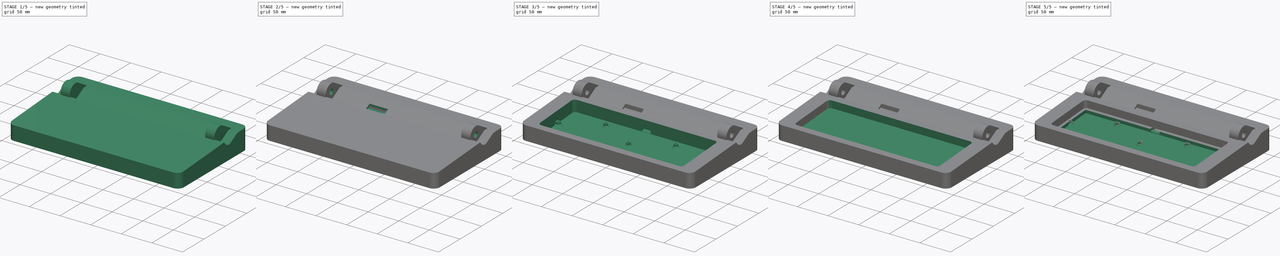
[diagram: build sequence overview — one tinted view per stage of 5, left to right]
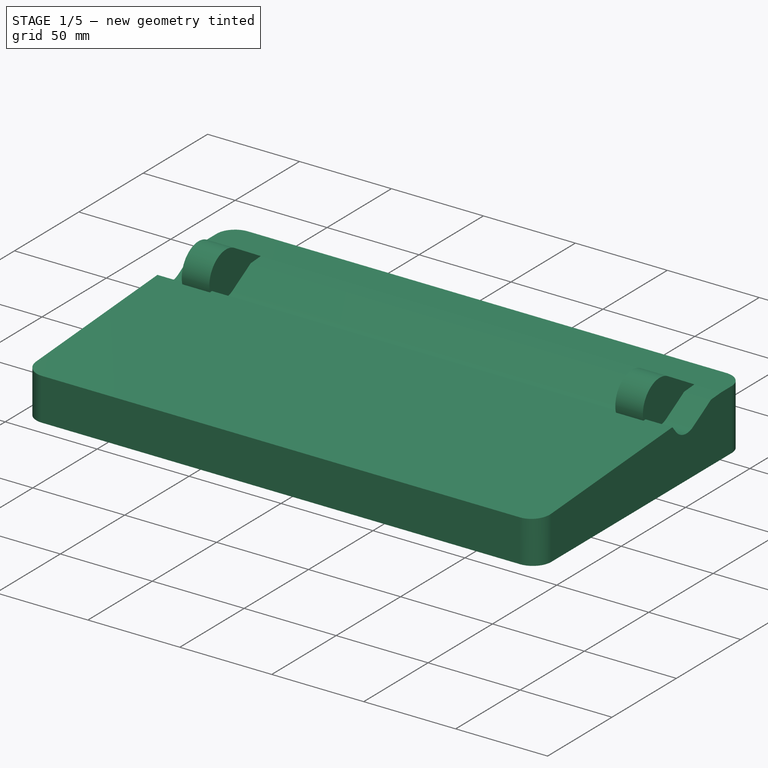
[diagram: stage 1 of 5 — iso view after this stage's code; geometry added in this stage tinted green]
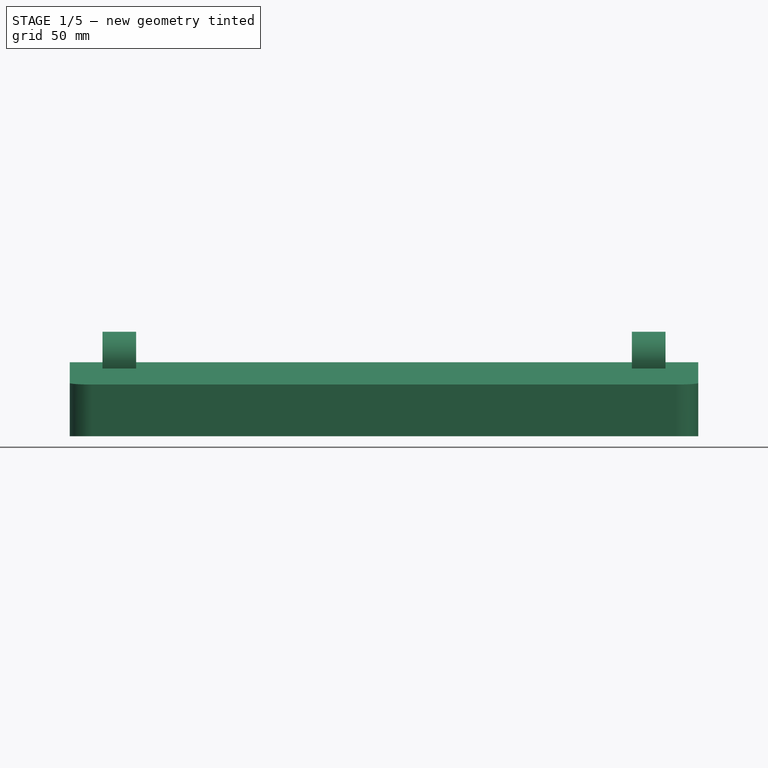
[diagram: stage 1 of 5 — front view after this stage's code; geometry added in this stage tinted green]
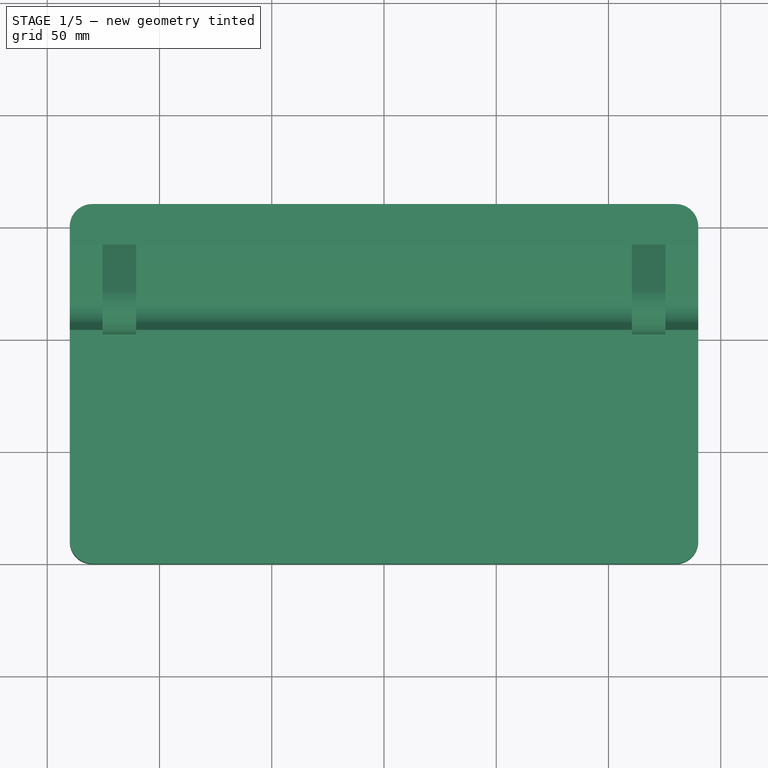
[diagram: stage 1 of 5 — top view after this stage's code; geometry added in this stage tinted green]
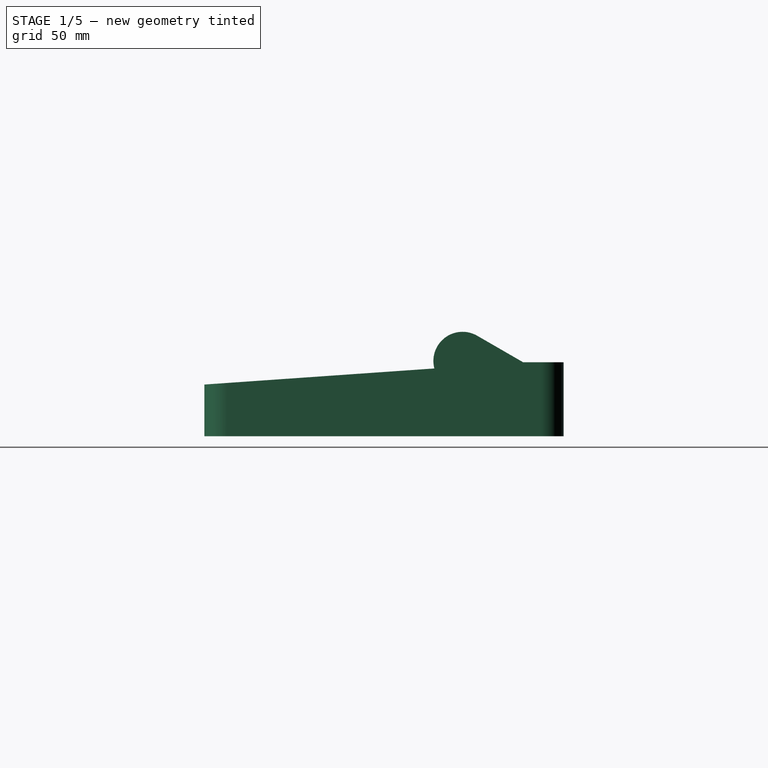
[diagram: stage 1 of 5 — right view after this stage's code; geometry added in this stage tinted green]
FCSTD DOCUMENT  (FreeCAD 1.0R39109 (Git))
Label: BottomEnclosure_v3
License: All rights reserved
LicenseURL: https://en.wikipedia.org/wiki/All_rights_reserved
objects: PartDesign::SubShapeBinder×18, Sketcher::SketchObject×14, PartDesign::Pocket×10, PartDesign::Pad×7, PartDesign::Body×5, App::Link×4, PartDesign::Boolean×4, PartDesign::Chamfer×2, PartDesign::Hole×2, PartDesign::Fillet×1, PartDesign::Thickness×1, PartDesign::Mirrored×1
note: 130 computed .brp shape members not serialized (recipe doc carries the construction recipe); baked Part::Feature solids carry a one-line shape summary decoded from their .brp
EXTERNAL_REF file=Spec.FCStd obj=Spreadsheet
EXTERNAL_REF file=TestAsm.FCStd obj=Assembly
EXTERNAL_REF file=AIR40_Layout2_Plate.FCStd obj=Sketch002
EXTERNAL_REF file=AIR40_Layout2_Plate.FCStd obj=Sketch001
EXTERNAL_REF file=rpi_zero.FCStd obj=Raspberry_Pi_Zero_2_W

FEATURE [PartDesign::SubShapeBinder] Binder011
  BindCopyOnChange = 0
  BindMode = 0
  ClaimChildren = false
  Context = -> Body [Binder011.]
  Fuse = false
  MakeFace = false
  OffsetFill = false
  OffsetIntersection = false
  OffsetJoinType = 0
  OffsetOpenResult = false
  PartialLoad = false
  Placement = pos=(-3.64e-14,-49.9267,26.5088) rot=(1,0,0;0.069813rad)
  Refine = true
  Relative = true
  Support = -> [Link001,Link002]
  _Version = 2
  expr: .Placement.Rotation.Angle = <<Vars>>.hood_angle
FEATURE [Sketcher::SketchObject] Sketch
  ArcFitTolerance = 1e-06
  AttachmentSupport = -> [YZ_Plane002]
  ExternalGeometry = -> [Sketch008]
  FullyConstrained = true
  MakeInternals = false
  MapMode = 5
  Placement = pos=(0,0,0) rot=(0.57735,0.57735,0.57735;2.0944rad)
  sketch-geometry (6):
    g0: ArcOfCircle CenterX=15 CenterY=33.5 CenterZ=0 NormalX=0 NormalY=0 NormalZ=1 AngleXU=0 Radius=10.5 StartAngle=3.83972 EndAngle=5.23599
    g1: LineSegment StartX=3.99563 StartY=30.2794 StartZ=0 EndX=6.95653 EndY=26.7507 EndZ=0
    g2: LineSegment StartX=20.25 StartY=24.4067 StartZ=0 EndX=34.0635 EndY=32.382 EndZ=0
    g3: LineSegment [constr] StartX=6.95653 StartY=26.7507 StartZ=0 EndX=7.33956 EndY=27.0721 EndZ=0
    g4: LineSegment [constr] StartX=7.33956 StartY=27.0721 StartZ=0 EndX=15 EndY=33.5 EndZ=0
    g5: LineSegment StartX=3.99563 StartY=30.2794 StartZ=0 EndX=34.0635 EndY=32.382 EndZ=0
  constraints (15):
    c: Coincident(g0,g-3)
    c: PointOnObject(g1,g-5)
    c: Coincident(g3,g1)
    c: Coincident(g4,g0)
    c: PointOnObject(g2,g-5)
    c: Angle(g-1,g2) = 0.523599
    c: Tangent(g0,g1) = -1.5708
    c: Tangent(g0,g2) = -1.5708
    c: Coincident(g3,g4)
    c: PointOnObject(g3,g-4)
    c: Parallel(g3,g4)
    c: Coincident(g5,g1)
    c: Coincident(g5,g2)
    c: Angle(g-1,g4) = 0.698132
    c: Distance(g0,g3) = 0.5
FEATURE [Sketcher::SketchObject] Sketch012  label="Sketch013"
  ArcFitTolerance = 1e-06
  AttachmentSupport = -> [YZ_Plane002]
  ExternalGeometry = -> [Sketch,Sketch008]
  FullyConstrained = true
  MakeInternals = false
  MapMode = 5
  Placement = pos=(0,0,0) rot=(0.57735,0.57735,0.57735;2.0944rad)
  sketch-geometry (7):
    g0: ArcOfCircle CenterX=15 CenterY=33.5 CenterZ=0 NormalX=0 NormalY=0 NormalZ=1 AngleXU=0 Radius=13 StartAngle=1.0472 EndAngle=3.40062
    g1: LineSegment StartX=21.5 StartY=44.7583 StartZ=0 EndX=41.9779 EndY=32.9354 EndZ=0
    g2: LineSegment StartX=2.43368 StartY=30.1702 StartZ=0 EndX=3.99563 EndY=30.2794 EndZ=0
    g3: LineSegment StartX=34.0635 StartY=32.382 StartZ=0 EndX=41.9779 EndY=32.9354 EndZ=0
    g4: LineSegment StartX=3.99563 StartY=30.2794 StartZ=0 EndX=6.95653 EndY=26.7507 EndZ=0
    g5: LineSegment StartX=20.25 StartY=24.4067 StartZ=0 EndX=34.0635 EndY=32.382 EndZ=0
    g6: ArcOfCircle CenterX=15 CenterY=33.5 CenterZ=0 NormalX=0 NormalY=0 NormalZ=1 AngleXU=0 Radius=10.5 StartAngle=3.83972 EndAngle=5.23599
  constraints (16):
    c: Diameter(g0) = 26
    c: Coincident(g0,g-3)
    c: Coincident(g1,g-6)
    c: Tangent(g0,g1) = 1.5708
    c: PointOnObject(g0,g-6)
    c: Coincident(g2,g0)
    c: Coincident(g2,g-4)
    c: Coincident(g3,g-5)
    c: Coincident(g3,g1)
    c: Coincident(g4,g2)
    c: Coincident(g4,g-4)
    c: Coincident(g5,g-5)
    c: Coincident(g5,g3)
    c: Coincident(g6,g4)
    c: Coincident(g6,g5)
    c: Tangent(g6,g-3)
FEATURE [PartDesign::SubShapeBinder] Binder014
  BindCopyOnChange = 0
  BindMode = 0
  ClaimChildren = false
  Context = -> Body002 [Binder014.]
  Fuse = false
  MakeFace = true
  OffsetFill = false
  OffsetIntersection = false
  OffsetJoinType = 0
  OffsetOpenResult = false
  PartialLoad = false
  Refine = true
  Relative = true
  Support = -> [Sketch008[Edge2,Edge3,Edge4,Edge5,Edge6,Edge1]]
  _Version = 2
FEATURE [PartDesign::SubShapeBinder] Binder015
  BindCopyOnChange = 0
  BindMode = 0
  ClaimChildren = false
  Context = -> Body002 [Binder015.]
  Fuse = false
  MakeFace = true
  OffsetFill = false
  OffsetIntersection = false
  OffsetJoinType = 0
  OffsetOpenResult = false
  PartialLoad = false
  Refine = true
  Relative = true
  Support = -> [Sketch]
  _Version = 2
FEATURE [PartDesign::SubShapeBinder] Binder016
  BindCopyOnChange = 0
  BindMode = 0
  ClaimChildren = false
  Context = -> Body002 [Binder016.]
  Fuse = false
  MakeFace = true
  OffsetFill = false
  OffsetIntersection = false
  OffsetJoinType = 0
  OffsetOpenResult = false
  PartialLoad = false
  Placement = pos=(110.4,0,0) rot=(0,0,1;0rad)
  Refine = true
  Relative = true
  Support = -> [Sketch012]
  _Version = 2
  expr: .Placement.Base.x = (<<Vars>>.top_enclosure_width - 32 * 2) / 2 + 2.4
FEATURE [PartDesign::SubShapeBinder] Binder017
  BindCopyOnChange = 0
  BindMode = 0
  ClaimChildren = false
  Context = -> Body002 [Binder017.]
  Fuse = false
  MakeFace = true
  OffsetFill = false
  OffsetIntersection = false
  OffsetJoinType = 0
  OffsetOpenResult = false
  PartialLoad = false
  Refine = true
  Relative = true
  Support = -> [Sketch008[Edge7]]
  _Version = 2
FEATURE [PartDesign::Pad] Pad001
  Direction = (1,0,0)
  Length = 280
  Length2 = 10
  Midplane = true
  Profile = -> Binder014
  Refine = true
  Suppressed = false
  Type = 0
  expr: Length = <<Vars>>.top_enclosure_width
FEATURE [PartDesign::Fillet] Fillet
  Base = -> Pad001 [Edge12,Edge13,Edge7,Edge6]
  BaseFeature = -> Pad001
  Radius = 10
  Refine = true
  SupportTransform = false
  Suppressed = false
  UseAllEdges = false
  expr: Radius = <<Vars>>.ext_radius
FEATURE [PartDesign::Pocket] Pocket001
  BaseFeature = -> Fillet
  Direction = (-1,0,0)
  Length = 5
  Length2 = 5
  Midplane = true
  Profile = -> Binder015
  Refine = true
  Suppressed = false
  Type = 1
FEATURE [PartDesign::Thickness] Thickness
  Base = -> Pocket001 [Face8]
  BaseFeature = -> Pocket001
  Intersection = true
  Join = 1
  Mode = 0
  Refine = true
  Reversed = true
  SupportTransform = false
  Suppressed = false
  Value = 2.5
  expr: Value = <<Vars>>.wall
FEATURE [PartDesign::Pad] Pad002
  BaseFeature = -> Thickness
  Direction = (1,0,0)
  Length = 15
  Length2 = 10
  Profile = -> Binder016
  Refine = true
  Suppressed = false
  Type = 0
FEATURE [PartDesign::Mirrored] Mirrored
  BaseFeature = -> Pad002
  MirrorPlane = -> YZ_Plane002
  Originals = -> [Pad002]
  Refine = true
  Suppressed = false
  TransformMode = 0
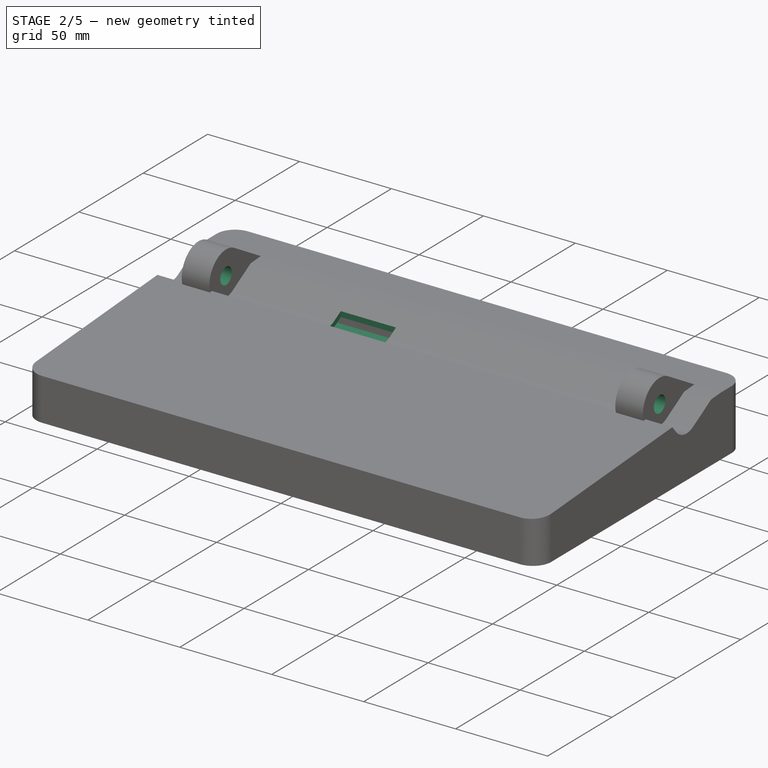
[diagram: stage 2 of 5 — iso view after this stage's code; geometry added in this stage tinted green]
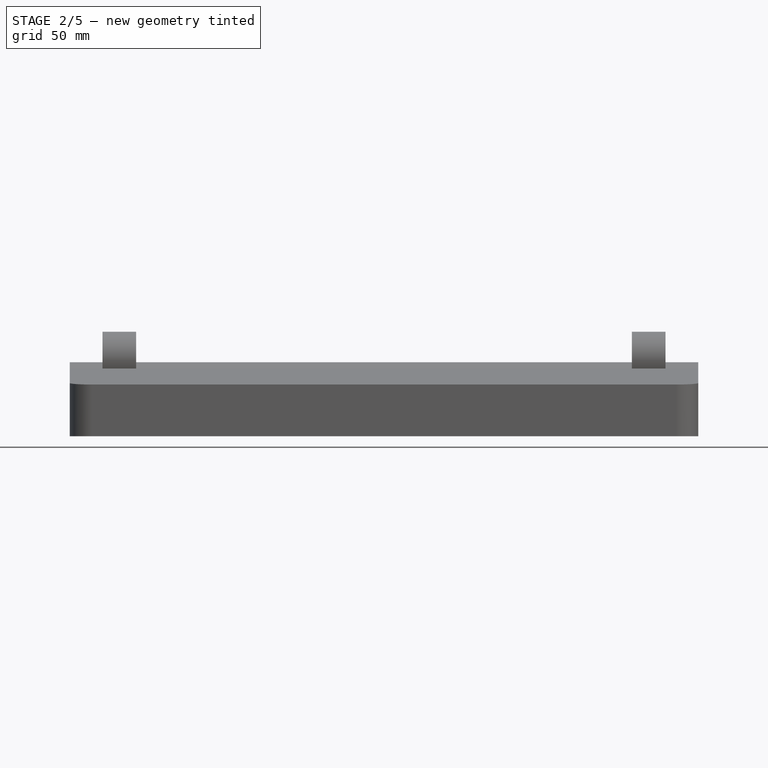
[diagram: stage 2 of 5 — front view after this stage's code; geometry added in this stage tinted green]
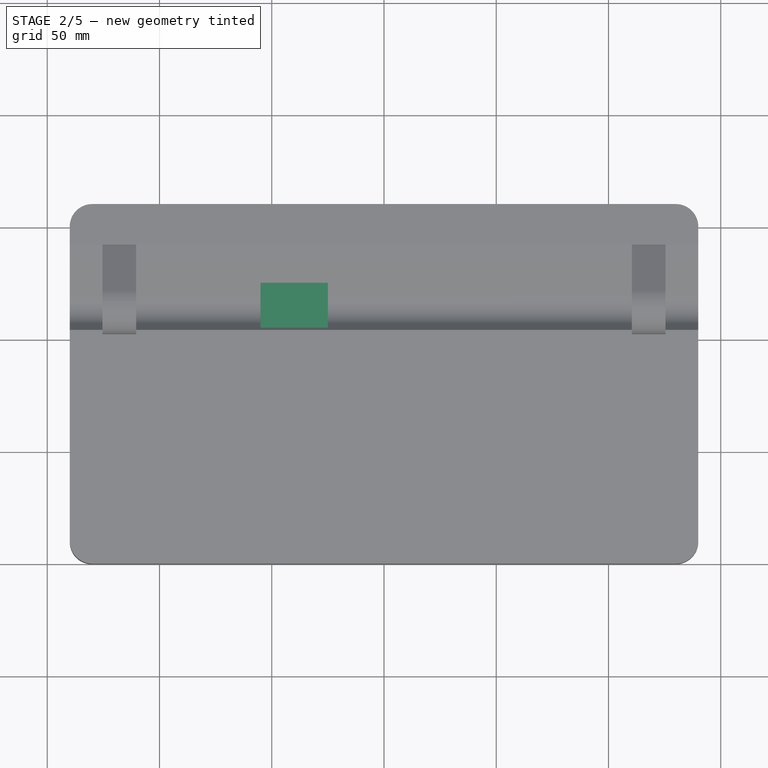
[diagram: stage 2 of 5 — top view after this stage's code; geometry added in this stage tinted green]
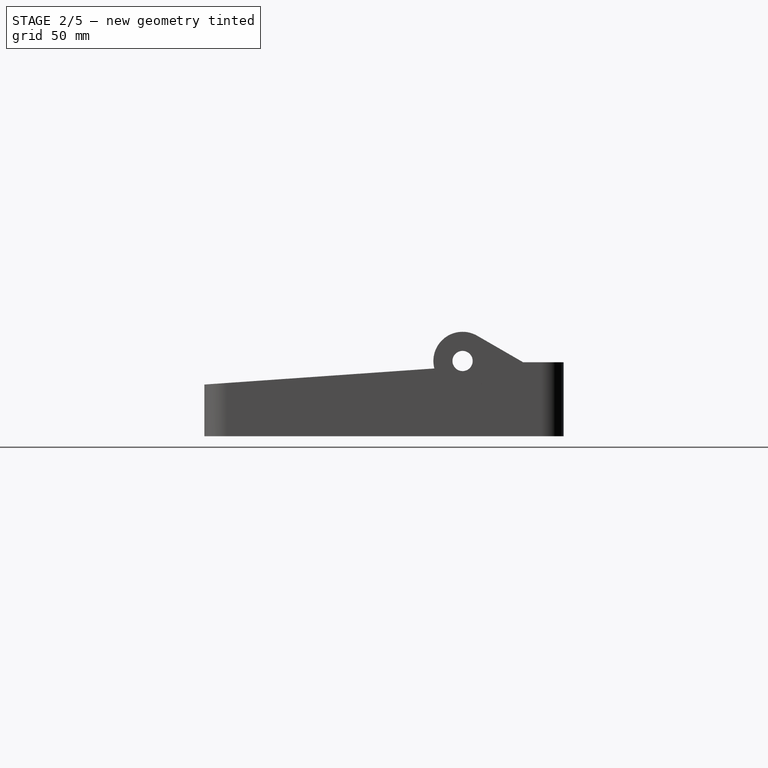
[diagram: stage 2 of 5 — right view after this stage's code; geometry added in this stage tinted green]
FEATURE [PartDesign::Pocket] Pocket002
  BaseFeature = -> Mirrored
  Direction = (-1,0,0)
  Length = 5
  Length2 = 5
  Midplane = true
  Profile = -> Binder017
  Refine = true
  Suppressed = false
  Type = 1
FEATURE [Sketcher::SketchObject] Sketch013  label="Sketch014"
  ArcFitTolerance = 1e-06
  AttachmentSupport = -> [XY_Plane002]
  FullyConstrained = true
  MakeInternals = false
  MapMode = 5
  expr: Constraints[10] = <<Vars>>.wire_hole_offset_x
  expr: Constraints[9] = <<Vars>>.wire_hole_width
  sketch-geometry (5):
    g0: LineSegment StartX=-55 StartY=5 StartZ=0 EndX=-25 EndY=5 EndZ=0
    g1: LineSegment StartX=-25 StartY=5 StartZ=0 EndX=-25 EndY=25 EndZ=0
    g2: LineSegment StartX=-25 StartY=25 StartZ=0 EndX=-55 EndY=25 EndZ=0
    g3: LineSegment StartX=-55 StartY=25 StartZ=0 EndX=-55 EndY=5 EndZ=0
    g4: GeomPoint [constr] X=-40 Y=15 Z=0
  constraints (13):
    c: Coincident(g0,g1)
    c: Coincident(g1,g2)
    c: Coincident(g2,g3)
    c: Coincident(g3,g0)
    c: Horizontal(g0)
    c: Horizontal(g2)
    c: Vertical(g1)
    c: Vertical(g3)
    c: Symmetric(g2,g0,g4)
    c: DistanceX(g2,g2) = 30
    c: DistanceX(g4,g-1) = 40
    c: DistanceY(g-1,g4) = 15
    c: DistanceY(g3,g3) = 20
FEATURE [PartDesign::Pocket] Pocket003
  BaseFeature = -> Pocket002
  Direction = (0,0,-1)
  Length = 5
  Length2 = 5
  Midplane = true
  Profile = -> Sketch013
  ReferenceAxis = -> Sketch013 [N_Axis]
  Refine = true
  Suppressed = false
  Type = 1
FEATURE [PartDesign::Body] Body  label="Bottom Enclosure - 0"
  AllowCompound = false
  Group = -> [Boolean,Binder011,Binder018,Pad,Binder019,Pocket,Binder020,Pocket005,Sketch014,Pad003,Chamfer,Hole,Sketch015,Pocket006,Binder021,Pocket007]
  Origin = -> Origin
  Tip = -> Pocket007
FEATURE [PartDesign::SubShapeBinder] Binder022
  BindCopyOnChange = 0
  BindMode = 0
  ClaimChildren = false
  Context = -> Body003 [Binder022.]
  Fuse = false
  MakeFace = true
  OffsetFill = false
  OffsetIntersection = false
  OffsetJoinType = 0
  OffsetOpenResult = false
  PartialLoad = false
  Refine = true
  Relative = true
  Support = -> [Body002]
  _Version = 2
FEATURE [PartDesign::Boolean] Boolean001
  Group = -> [Binder022]
  Refine = true
  Suppressed = false
  Type = 0
  UsePlacement = true
FEATURE [Sketcher::SketchObject] Sketch016  label="Sketch017"
  ArcFitTolerance = 1e-06
  AttachmentSupport = -> [XY_Plane003]
  ExternalGeometry = -> [Boolean001]
  FullyConstrained = true
  MakeInternals = false
  MapMode = 5
  sketch-geometry (8):
    g0: LineSegment StartX=-140 StartY=3.99563 StartZ=0 EndX=-140 EndY=-90 EndZ=0
    g1: LineSegment StartX=-130 StartY=-100 StartZ=0 EndX=130 EndY=-100 EndZ=0
    g2: LineSegment StartX=140 StartY=-90 StartZ=0 EndX=140 EndY=3.99563 EndZ=0
    g3: LineSegment StartX=140 StartY=3.99563 StartZ=0 EndX=-140 EndY=3.99563 EndZ=0
    g4: ArcOfCircle CenterX=-130 CenterY=-90 CenterZ=0 NormalX=0 NormalY=0 NormalZ=1 AngleXU=0 Radius=10 StartAngle=3.14159 EndAngle=4.71239
    g5: GeomPoint [constr] X=-140 Y=-100 Z=0
    g6: ArcOfCircle CenterX=130 CenterY=-90 CenterZ=0 NormalX=0 NormalY=0 NormalZ=1 AngleXU=0 Radius=10 StartAngle=4.71239 EndAngle=6.28319
    g7: GeomPoint [constr] X=140 Y=-100 Z=0
  constraints (18):
    c: Coincident(g2,g3)
    c: Coincident(g3,g0)
    c: Vertical(g0)
    c: Vertical(g2)
    c: Horizontal(g1)
    c: Horizontal(g3)
    c: PointOnObject(g-4,g1)
    c: PointOnObject(g-3,g3)
    c: PointOnObject(g5,g0)
    c: PointOnObject(g5,g1)
    c: Tangent(g0,g4) = -1.5708
    c: Tangent(g1,g4) = -1.5708
    c: PointOnObject(g7,g1)
    c: PointOnObject(g7,g2)
    c: Tangent(g1,g6) = -1.5708
    c: Tangent(g2,g6) = -1.5708
    c: Coincident(g-5,g2)
    c: Coincident(g0,g-6)
FEATURE [PartDesign::Pad] Pad004
  BaseFeature = -> Boolean001
  Direction = (0,0,1)
  Length = 10
  Length2 = 10
  Profile = -> Sketch016
  ReferenceAxis = -> Sketch016 [N_Axis]
  Refine = true
  Suppressed = false
  Type = 2
FEATURE [PartDesign::SubShapeBinder] Binder023
  BindCopyOnChange = 0
  BindMode = 0
  ClaimChildren = false
  Context = -> Body003 [Binder023.]
  Fuse = false
  MakeFace = true
  OffsetFill = false
  OffsetIntersection = false
  OffsetJoinType = 0
  OffsetOpenResult = false
  PartialLoad = false
  Refine = true
  Relative = true
  Support = -> [Pad004[Edge17,Edge13,Edge15,Edge135,Edge141,Edge140,Edge139,Edge138]]
  _Version = 2
FEATURE [PartDesign::Pad] Pad005
  BaseFeature = -> Pad004
  Direction = (0,0,1)
  Length = 2.5
  Length2 = 10
  Profile = -> Binder023
  Refine = true
  Suppressed = false
  Type = 0
  expr: Length = <<Vars>>.wall
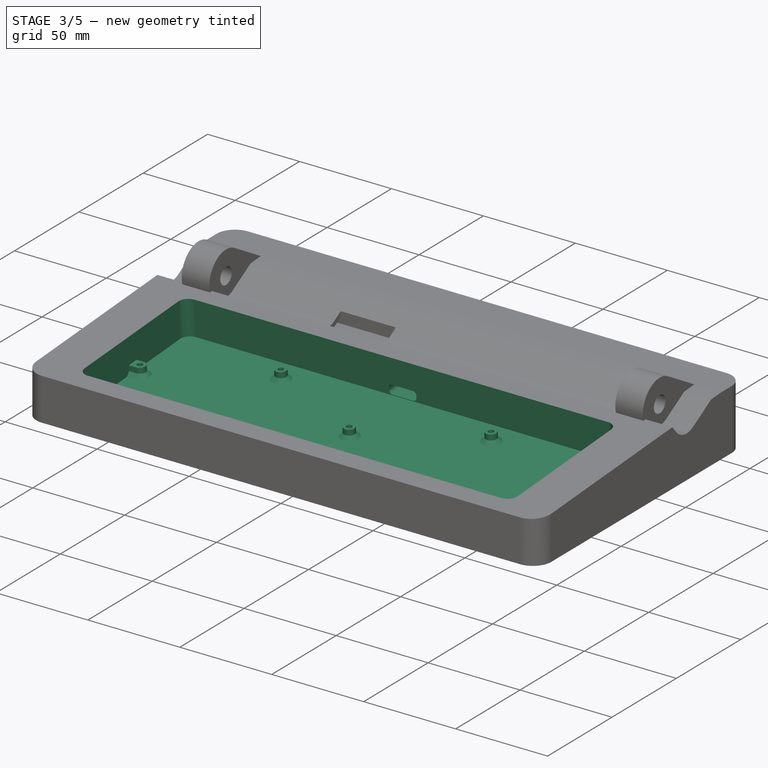
[diagram: stage 3 of 5 — iso view after this stage's code; geometry added in this stage tinted green]
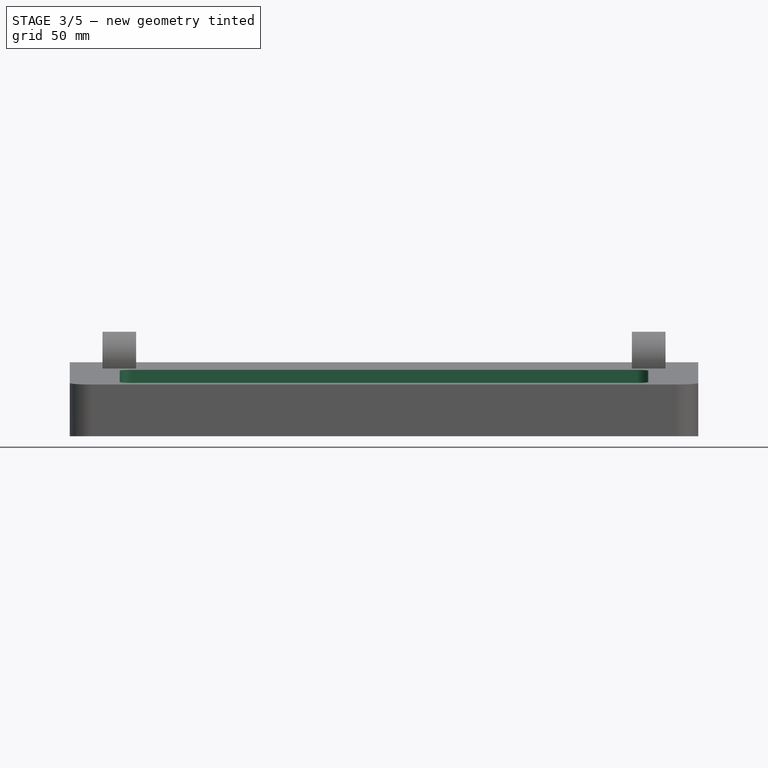
[diagram: stage 3 of 5 — front view after this stage's code; geometry added in this stage tinted green]
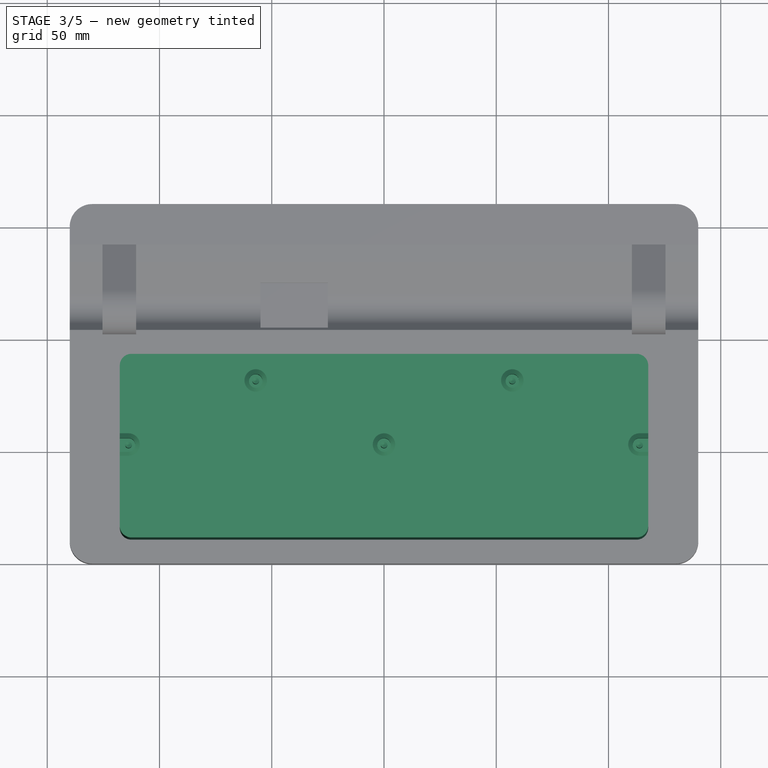
[diagram: stage 3 of 5 — top view after this stage's code; geometry added in this stage tinted green]
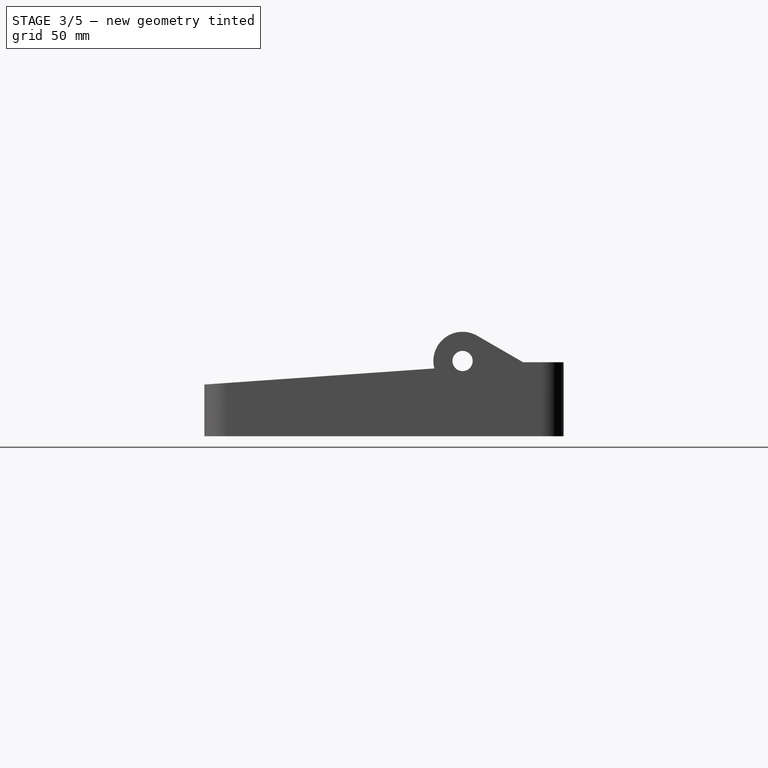
[diagram: stage 3 of 5 — right view after this stage's code; geometry added in this stage tinted green]
FEATURE [PartDesign::Body] Body003  label="Bottom Enclosure - 0.1"
  AllowCompound = false
  Group = -> [Boolean001,Sketch016,Pad004,Binder023,Pad005]
  Origin = -> Origin003
  Tip = -> Pad005
FEATURE [PartDesign::SubShapeBinder] Binder024
  BindCopyOnChange = 0
  BindMode = 0
  ClaimChildren = false
  Context = -> Body004 [Binder024.]
  Fuse = false
  MakeFace = true
  OffsetFill = false
  OffsetIntersection = false
  OffsetJoinType = 0
  OffsetOpenResult = false
  PartialLoad = false
  Refine = true
  Relative = true
  Support = -> [Body003]
  _Version = 2
FEATURE [PartDesign::Boolean] Boolean002
  Group = -> [Binder024]
  Refine = true
  Suppressed = false
  Type = 0
  UsePlacement = true
FEATURE [PartDesign::SubShapeBinder] Binder025
  BindCopyOnChange = 0
  BindMode = 0
  ClaimChildren = false
  Context = -> Body004 [Binder025.]
  Fuse = false
  MakeFace = false
  OffsetFill = false
  OffsetIntersection = false
  OffsetJoinType = 0
  OffsetOpenResult = false
  PartialLoad = false
  Placement = pos=(2.81e-14,-48.0113,26.6427) rot=(1,0,0;0.069813rad)
  Refine = true
  Relative = true
  Support = -> [Link001,Link002]
  _Version = 2
  expr: .Placement.Rotation.Angle = <<Vars>>.hood_angle
FEATURE [PartDesign::SubShapeBinder] Binder026
  BindCopyOnChange = 0
  BindMode = 0
  ClaimChildren = false
  Context = -> Body004 [Binder026.]
  Fuse = false
  MakeFace = true
  Offset = 0.2
  OffsetFill = false
  OffsetIntersection = false
  OffsetJoinType = 2
  OffsetOpenResult = false
  PartialLoad = false
  Refine = true
  Relative = true
  Support = -> [Binder025[Edge7,Edge14,Edge13,Edge12,Edge11,Edge10,Edge9,Edge8]]
  _Version = 2
  expr: Offset = <<Vars>>.clearance
FEATURE [PartDesign::Pocket] Pocket008
  BaseFeature = -> Boolean002
  Direction = (0,0.0697565,-0.997564)
  Length = 19
  Length2 = 5
  Profile = -> Binder026
  Refine = true
  Suppressed = false
  Type = 0
  expr: Length = 19 mm
FEATURE [App::Link] Link003  label="Raspberry Pi Zero 2 W"
  LinkPlacement = pos=(-7.11e-14,30,8.00001) rot=(0,0.707107,0.707107;3.14159rad)
  LinkedObject = -> <external rpi_zero.FCStd>#Raspberry_Pi_Zero_2_W
  Placement = pos=(-7.11e-14,30,8.00001) rot=(0,0.707107,0.707107;3.14159rad)
FEATURE [Sketcher::SketchObject] Sketch017  label="Sketch018"
  ArcFitTolerance = 1e-06
  AttachmentSupport = -> [Pocket008]
  ExternalGeometry = -> [Binder025]
  FullyConstrained = true
  MakeInternals = false
  MapMode = 5
  Placement = pos=(0,-0.762224,10.9003) rot=(1,0,0;0.069813rad)
  sketch-geometry (11):
    g0: ArcOfCircle CenterX=-113.798 CenterY=-46.0366 CenterZ=0 NormalX=0 NormalY=0 NormalZ=1 AngleXU=0 Radius=3 StartAngle=4.71239 EndAngle=7.85398
    g1: Circle CenterX=-57.1491 CenterY=-17.4608 CenterZ=0 NormalX=0 NormalY=0 NormalZ=1 AngleXU=0 Radius=3
    g2: Circle CenterX=0 CenterY=-46.0358 CenterZ=0 NormalX=0 NormalY=0 NormalZ=1 AngleXU=0 Radius=3
    g3: Circle CenterX=57.151 CenterY=-17.4608 CenterZ=0 NormalX=0 NormalY=0 NormalZ=1 AngleXU=0 Radius=3
    g4: ArcOfCircle CenterX=113.802 CenterY=-46.0366 CenterZ=0 NormalX=0 NormalY=0 NormalZ=1 AngleXU=0 Radius=3 StartAngle=1.5708 EndAngle=4.71239
    g5: LineSegment StartX=-123.798 StartY=-43.0366 StartZ=0 EndX=-123.798 EndY=-49.0366 EndZ=0
    g6: LineSegment StartX=-123.798 StartY=-49.0366 StartZ=0 EndX=-113.798 EndY=-49.0366 EndZ=0
    g7: LineSegment StartX=-113.798 StartY=-43.0366 StartZ=0 EndX=-123.798 EndY=-43.0366 EndZ=0
    g8: LineSegment StartX=113.802 StartY=-49.0366 StartZ=0 EndX=123.802 EndY=-49.0366 EndZ=0
    g9: LineSegment StartX=123.802 StartY=-49.0366 StartZ=0 EndX=123.802 EndY=-43.0366 EndZ=0
    g10: LineSegment StartX=123.802 StartY=-43.0366 StartZ=0 EndX=113.802 EndY=-43.0366 EndZ=0
  constraints (27):
    c: Coincident(g0,g-3)
    c: Coincident(g1,g-4)
    c: Coincident(g2,g-5)
    c: Coincident(g3,g-7)
    c: Coincident(g4,g-6)
    c: Equal(g4,g3)
    c: Equal(g3,g2)
    c: Coincident(g5,g6)
    c: Coincident(g7,g5)
    c: Vertical(g5)
    c: Horizontal(g7)
    c: DistanceX(g7,g7) = 10
    c: Tangent(g6,g0) = -1.5708
    c: Tangent(g0,g7) = -1.5708
    c: Horizontal(g6)
    c: Equal(g1,g0)
    c: Coincident(g8,g9)
    c: Coincident(g9,g10)
    c: Vertical(g9)
    c: Horizontal(g8)
    c: Coincident(g4,g10)
    c: Tangent(g4,g8) = -1.5708
    c: DistanceX(g10,g10) = 10
    c: Equal(g2,g1)
    c: Diameter(g2) = 6
    c: Vertical(g4,g4)
    c: Horizontal(g10)
FEATURE [PartDesign::Pad] Pad006
  BaseFeature = -> Pocket008
  Direction = (0,-0.0697565,0.997564)
  Length = 5
  Length2 = 10
  Profile = -> Sketch017
  ReferenceAxis = -> Sketch017 [N_Axis]
  Refine = true
  Suppressed = false
  Type = 0
FEATURE [PartDesign::Chamfer] Chamfer001
  Angle = 45
  Base = -> Pad006 [Edge148,Edge152,Edge151,Edge150,Edge145]
  BaseFeature = -> Pad006
  ChamferType = 0
  FlipDirection = false
  Refine = true
  Size = 2
  Size2 = 1
  SupportTransform = false
  Suppressed = false
  UseAllEdges = false
FEATURE [Sketcher::SketchObject] Sketch018  label="Sketch019"
  ArcFitTolerance = 1e-06
  AttachmentSupport = -> [Chamfer001]
  ExternalGeometry = -> [Binder025]
  FullyConstrained = true
  MakeInternals = false
  MapMode = 5
  Placement = pos=(0,-1.11101,15.8881) rot=(1,0,0;0.069813rad)
  sketch-geometry (5):
    g0: Circle CenterX=113.802 CenterY=-46.0366 CenterZ=0 NormalX=0 NormalY=0 NormalZ=1 AngleXU=0 Radius=1
    g1: Circle CenterX=57.151 CenterY=-17.4608 CenterZ=0 NormalX=0 NormalY=0 NormalZ=1 AngleXU=0 Radius=1
    g2: Circle CenterX=0 CenterY=-46.0358 CenterZ=0 NormalX=0 NormalY=0 NormalZ=1 AngleXU=0 Radius=1
    g3: Circle CenterX=-57.1491 CenterY=-17.4608 CenterZ=0 NormalX=0 NormalY=0 NormalZ=1 AngleXU=0 Radius=1
    g4: Circle CenterX=-113.798 CenterY=-46.0366 CenterZ=0 NormalX=0 NormalY=0 NormalZ=1 AngleXU=0 Radius=1
  constraints (10):
    c: Coincident(g0,g-7)
    c: Coincident(g1,g-6)
    c: Coincident(g2,g-5)
    c: Coincident(g3,g-4)
    c: Coincident(g4,g-3)
    c: Equal(g4,g3)
    c: Equal(g3,g2)
    c: Equal(g2,g1)
    c: Equal(g1,g0)
    c: Diameter(g2) = 2
FEATURE [PartDesign::Hole] Hole001
  BaseFeature = -> Chamfer001
  CustomThreadClearance = 0
  Depth = 5
  DepthType = 0
  Diameter = 3
  DrillForDepth = false
  DrillPoint = 1
  DrillPointAngle = 118
  HoleCutCountersinkAngle = 90
  HoleCutCustomValues = false
  HoleCutDepth = 0
  HoleCutDiameter = 6.1
  HoleCutType = 0
  ModelThread = false
  Profile = -> Sketch018
  Refine = true
  Suppressed = false
  Tapered = false
  TaperedAngle = 90
  ThreadClass = 0
  ThreadDepth = 5
  ThreadDepthType = 0
  ThreadDirection = 0
  ThreadFit = 0
  ThreadSize = 0
  ThreadType = 0
  Threaded = false
  UseCustomThreadClearance = false
  expr: Diameter = <<Vars>>.nut_inserts_m2
FEATURE [Sketcher::SketchObject] Sketch019  label="Sketch020"
  ArcFitTolerance = 1e-06
  AttachmentSupport = -> [Boolean003]
  ExternalGeometry = -> [Boolean003]
  FullyConstrained = true
  MakeInternals = false
  MapMode = 5
  Placement = pos=(0,60,0) rot=(0,0.707107,0.707107;3.14159rad)
  expr: Constraints[28] = <<Vars>>.ext_radius / 2
  expr: Constraints[29] = <<Vars>>.wall * 2
  expr: Constraints[30] = <<Vars>>.wall * 2
  sketch-geometry (14):
    g0: LineSegment StartX=-120 StartY=5 StartZ=0 EndX=120 EndY=5 EndZ=0
    g1: LineSegment StartX=125 StartY=10 StartZ=0 EndX=125 EndY=22.9354 EndZ=0
    g2: LineSegment StartX=120 StartY=27.9354 StartZ=0 EndX=-120 EndY=27.9354 EndZ=0
    g3: LineSegment StartX=-125 StartY=22.9354 StartZ=0 EndX=-125 EndY=10 EndZ=0
    g4: GeomPoint [constr] X=0 Y=16.4677 Z=0
    g5: LineSegment [constr] StartX=-130 StartY=16.4677 StartZ=0 EndX=130 EndY=16.4677 EndZ=0
    g6: ArcOfCircle CenterX=-120 CenterY=22.9354 CenterZ=0 NormalX=0 NormalY=0 NormalZ=1 AngleXU=0 Radius=5 StartAngle=1.5708 EndAngle=3.14159
    g7: GeomPoint [constr] X=-125 Y=27.9354 Z=0
    g8: ArcOfCircle CenterX=-120 CenterY=10 CenterZ=0 NormalX=0 NormalY=0 NormalZ=1 AngleXU=0 Radius=5 StartAngle=3.14159 EndAngle=4.71239
    g9: GeomPoint [constr] X=-125 Y=5 Z=0
    g10: ArcOfCircle CenterX=120 CenterY=22.9354 CenterZ=0 NormalX=0 NormalY=0 NormalZ=1 AngleXU=0 Radius=5 StartAngle=7e-16 EndAngle=1.5708
    g11: GeomPoint [constr] X=125 Y=27.9354 Z=0
    g12: ArcOfCircle CenterX=120 CenterY=10 CenterZ=0 NormalX=0 NormalY=0 NormalZ=1 AngleXU=0 Radius=5 StartAngle=4.71239 EndAngle=6.28319
    g13: GeomPoint [constr] X=125 Y=5 Z=0
  constraints (31):
    c: Horizontal(g0)
    c: Horizontal(g2)
    c: Vertical(g1)
    c: Vertical(g3)
    c: Symmetric(g11,g9,g4)
    c: PointOnObject(g4,g-2)
    c: Symmetric(g-3,g-3,g5)
    c: Symmetric(g-4,g-4,g5)
    c: PointOnObject(g4,g5)
    c: PointOnObject(g7,g2)
    c: PointOnObject(g7,g3)
    c: Tangent(g2,g6) = -1.5708
    c: Tangent(g3,g6) = -1.5708
    c: PointOnObject(g9,g0)
    c: PointOnObject(g9,g3)
    c: Tangent(g0,g8) = -1.5708
    c: Tangent(g3,g8) = -1.5708
    c: PointOnObject(g11,g1)
    c: PointOnObject(g11,g2)
    c: Tangent(g1,g10) = -1.5708
    c: Tangent(g2,g10) = -1.5708
    c: PointOnObject(g13,g0)
    c: PointOnObject(g13,g1)
    c: Tangent(g0,g12) = -1.5708
    c: Tangent(g1,g12) = -1.5708
    c: Equal(g6,g8)
    c: Equal(g8,g10)
    c: Equal(g10,g12)
    c: Radius(g6) = 5
    c: DistanceY(g7,g-3) = 5
    c: DistanceX(g-3,g7) = 5
FEATURE [Sketcher::SketchObject] Sketch020  label="Sketch021"
  ArcFitTolerance = 1e-06
  AttachmentSupport = -> [Hole001]
  ExternalGeometry = -> [Hole001]
  FullyConstrained = false
  MakeInternals = false
  MapMode = 5
  Placement = pos=(0,-4.57466,-0.319891) rot=(1,0,0;1.64061rad)
  sketch-geometry (13):
    g0: LineSegment StartX=-5.5 StartY=11.2559 StartZ=0 EndX=5.5 EndY=11.2559 EndZ=0
    g1: LineSegment StartX=7.5 StartY=13.2559 StartZ=0 EndX=7.5 EndY=14.2559 EndZ=0
    g2: LineSegment StartX=5.5 StartY=16.2559 StartZ=0 EndX=-5.5 EndY=16.2559 EndZ=0
    g3: LineSegment StartX=-7.5 StartY=14.2559 StartZ=0 EndX=-7.5 EndY=13.2559 EndZ=0
    g4: GeomPoint [constr] X=0 Y=13.7559 Z=0
    g5: ArcOfCircle CenterX=5.5 CenterY=14.2559 CenterZ=0 NormalX=0 NormalY=0 NormalZ=1 AngleXU=0 Radius=2 StartAngle=2e-16 EndAngle=1.5708
    g6: GeomPoint [constr] X=7.5 Y=16.2559 Z=0
    g7: ArcOfCircle CenterX=5.5 CenterY=13.2559 CenterZ=0 NormalX=0 NormalY=0 NormalZ=1 AngleXU=0 Radius=2 StartAngle=4.71239 EndAngle=6.28319
    g8: GeomPoint [constr] X=7.5 Y=11.2559 Z=0
    g9: ArcOfCircle CenterX=-5.5 CenterY=13.2559 CenterZ=0 NormalX=0 NormalY=0 NormalZ=1 AngleXU=0 Radius=2 StartAngle=3.14159 EndAngle=4.71239
    g10: GeomPoint [constr] X=-7.5 Y=11.2559 Z=0
    g11: ArcOfCircle CenterX=-5.5 CenterY=14.2559 CenterZ=0 NormalX=0 NormalY=0 NormalZ=1 AngleXU=0 Radius=2 StartAngle=1.5708 EndAngle=3.14159
    g12: GeomPoint [constr] X=-7.5 Y=16.2559 Z=0
  constraints (28):
    c: Horizontal(g0)
    c: Horizontal(g2)
    c: Vertical(g1)
    c: Vertical(g3)
    c: Symmetric(g6,g10,g4)
    c: PointOnObject(g4,g-2)
    c: PointOnObject(g6,g1)
    c: PointOnObject(g6,g2)
    c: Tangent(g1,g5) = -1.5708
    c: Tangent(g2,g5) = -1.5708
    c: PointOnObject(g8,g0)
    c: PointOnObject(g8,g1)
    c: Tangent(g0,g7) = -1.5708
    c: Tangent(g1,g7) = -1.5708
    c: PointOnObject(g10,g0)
    c: PointOnObject(g10,g3)
    c: Tangent(g0,g9) = -1.5708
    c: Tangent(g3,g9) = -1.5708
    c: PointOnObject(g12,g2)
    c: PointOnObject(g12,g3)
    c: Tangent(g2,g11) = -1.5708
    c: Tangent(g3,g11) = -1.5708
    c: Equal(g9,g11)
    c: Equal(g11,g7)
    c: Equal(g7,g5)
    c: DistanceX(g3,g1) = 15
    c: DistanceY(g0,g2) = 5
    c: Radius(g11) = 2
FEATURE [PartDesign::Pocket] Pocket010
  BaseFeature = -> Hole001
  Direction = (0,0.997564,0.0697565)
  Length = 5
  Length2 = 5
  Profile = -> Sketch020
  ReferenceAxis = -> Sketch020 [N_Axis]
  Refine = true
  Suppressed = false
  Type = 2
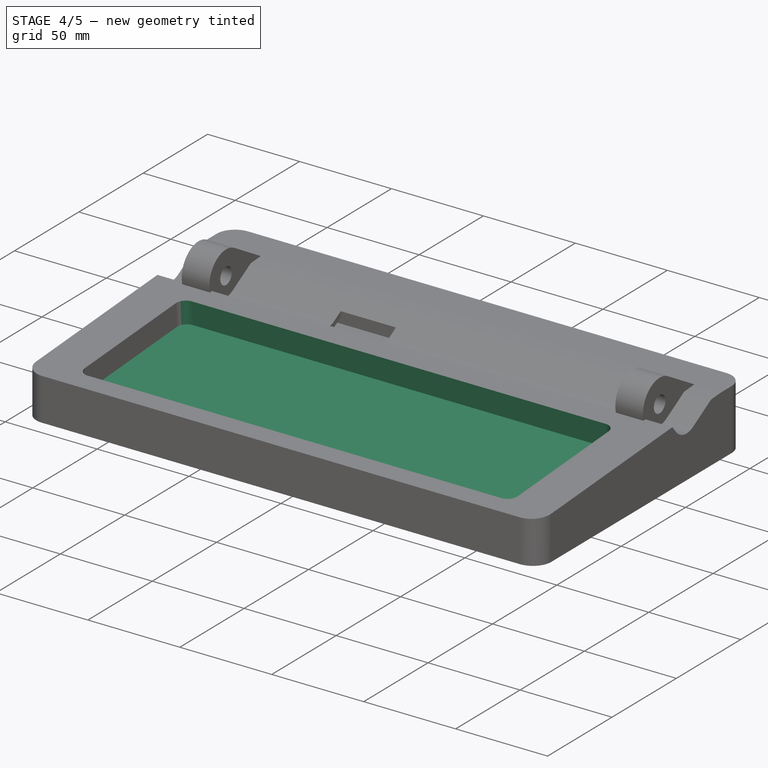
[diagram: stage 4 of 5 — iso view after this stage's code; geometry added in this stage tinted green]
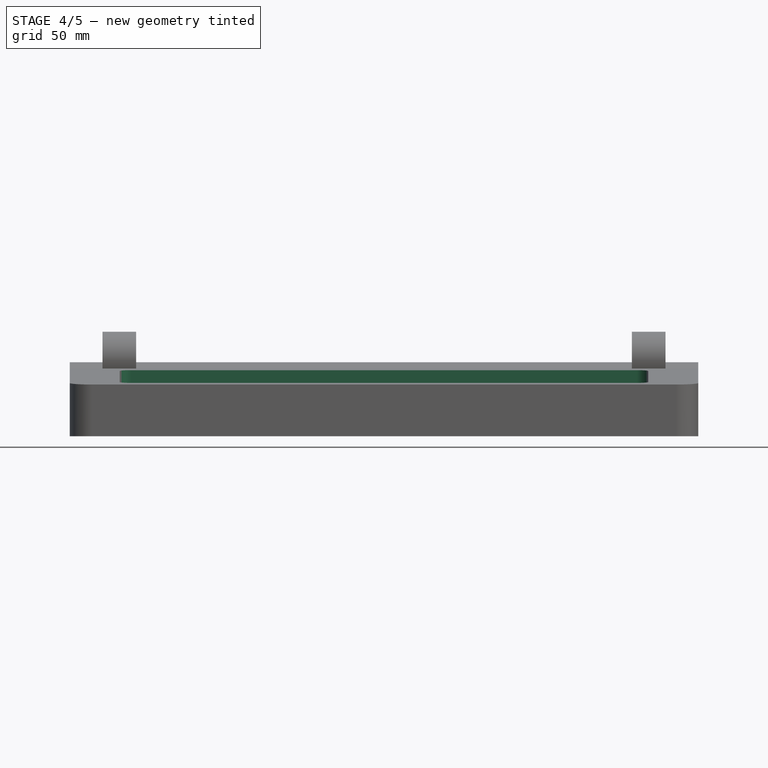
[diagram: stage 4 of 5 — front view after this stage's code; geometry added in this stage tinted green]
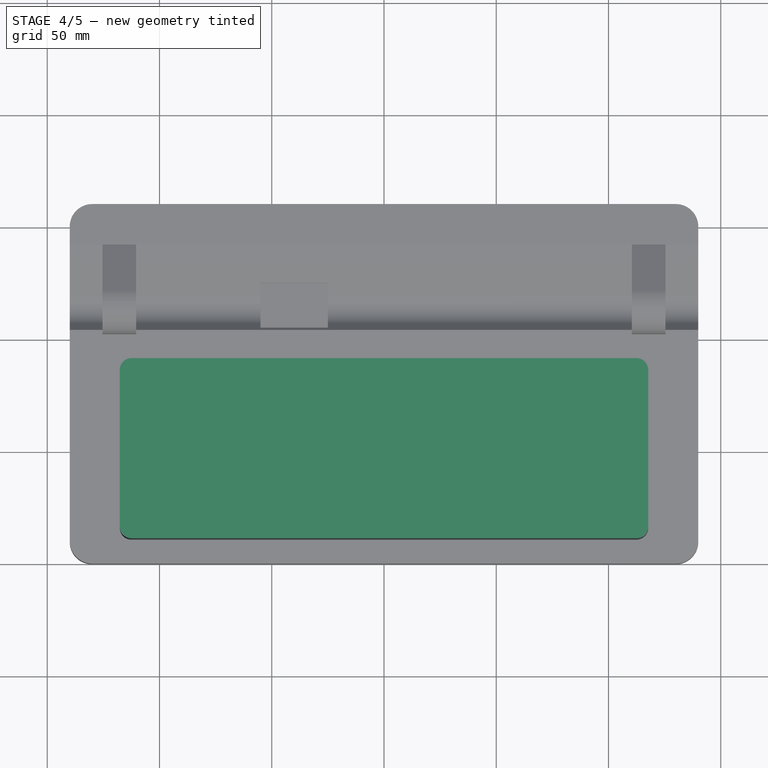
[diagram: stage 4 of 5 — top view after this stage's code; geometry added in this stage tinted green]
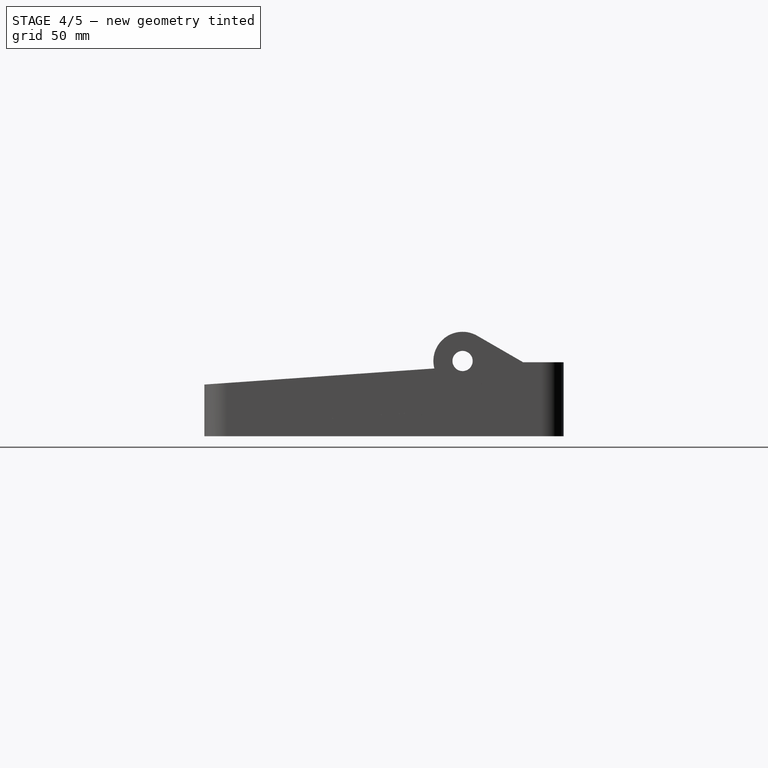
[diagram: stage 4 of 5 — right view after this stage's code; geometry added in this stage tinted green]
FEATURE [App::Link] Link  label="Vars"
  LinkedObject = -> <external Spec.FCStd>#Spreadsheet
FEATURE [Sketcher::SketchObject] Sketch003
  ArcFitTolerance = 1e-06
  FullyConstrained = false
  MakeInternals = false
  Placement = pos=(-114.3,-38.1,0) rot=(0,0,1;0rad)
  expr: .Placement.Base.x = -228.6 / 2
  expr: .Placement.Base.y = -76.2 / 2
  sketch-geometry (608):
    g0: LineSegment StartX=0.0950846 StartY=76.4575 StartZ=0 EndX=228.695 EndY=76.4575 EndZ=0
    g1: LineSegment StartX=228.695 StartY=76.4575 StartZ=0 EndX=228.695 EndY=0.257693 EndZ=0
    g2: LineSegment StartX=228.695 StartY=0.257693 StartZ=0 EndX=0.0950846 EndY=0.257693 EndZ=0
    g3: LineSegment StartX=0.0950846 StartY=0.257693 StartZ=0 EndX=0.0950846 EndY=76.4575 EndZ=0
    g4: LineSegment StartX=107.395 StartY=16.7831 StartZ=0 EndX=107.395 EndY=16.1837 EndZ=0
    g5: LineSegment StartX=107.395 StartY=16.1837 StartZ=0 EndX=106.594 EndY=16.1837 EndZ=0
    g6: LineSegment StartX=106.594 StartY=16.1837 StartZ=0 EndX=106.594 EndY=12.0826 EndZ=0
    g7: LineSegment StartX=106.594 StartY=12.0826 StartZ=0 EndX=105.869 EndY=12.0826 EndZ=0
    g8: LineSegment StartX=105.869 StartY=12.0826 StartZ=0 EndX=105.869 EndY=15.3128 EndZ=0
    g9: LineSegment StartX=105.869 StartY=15.3128 StartZ=0 EndX=104.144 EndY=15.3128 EndZ=0
    g10: LineSegment StartX=104.144 StartY=15.3128 StartZ=0 EndX=104.144 EndY=16.2347 EndZ=0
    g11: LineSegment StartX=104.144 StartY=16.2347 StartZ=0 EndX=100.845 EndY=16.2347 EndZ=0
    g12: LineSegment StartX=100.845 StartY=16.2347 StartZ=0 EndX=100.845 EndY=15.3128 EndZ=0
    g13: LineSegment StartX=100.845 StartY=15.3128 StartZ=0 EndX=99.1182 EndY=15.3128 EndZ=0
    g14: LineSegment StartX=99.1182 StartY=15.3128 StartZ=0 EndX=99.1182 EndY=12.0826 EndZ=0
    g15: LineSegment StartX=99.1182 StartY=12.0826 StartZ=0 EndX=98.2941 EndY=12.0826 EndZ=0
    g16: LineSegment StartX=98.2941 StartY=12.0826 StartZ=0 EndX=98.2941 EndY=9.28384 EndZ=0
    g17: LineSegment StartX=98.2941 StartY=9.28384 StartZ=0 EndX=99.1182 EndY=9.28384 EndZ=0
    g18: LineSegment StartX=99.1182 StartY=9.28384 StartZ=0 EndX=99.1182 EndY=3.01377 EndZ=0
    g19: LineSegment StartX=99.1182 StartY=3.01377 StartZ=0 EndX=100.845 EndY=3.01377 EndZ=0
    g20: LineSegment StartX=100.845 StartY=3.01377 StartZ=0 EndX=100.845 EndY=2.03261 EndZ=0
    g21: LineSegment StartX=100.845 StartY=2.03261 StartZ=0 EndX=104.144 EndY=2.03261 EndZ=0
    g22: LineSegment StartX=104.144 StartY=2.03261 StartZ=0 EndX=104.144 EndY=3.01377 EndZ=0
    g23: LineSegment StartX=104.144 StartY=3.01377 StartZ=0 EndX=105.869 EndY=3.01377 EndZ=0
    g24: LineSegment StartX=105.869 StartY=3.01377 StartZ=0 EndX=105.869 EndY=7.48273 EndZ=0
    g25: LineSegment StartX=105.869 StartY=7.48273 StartZ=0 EndX=106.594 EndY=7.48273 EndZ=0
    g26: LineSegment StartX=106.594 StartY=7.48273 StartZ=0 EndX=106.594 EndY=3.38308 EndZ=0
    g27: LineSegment StartX=106.594 StartY=3.38308 StartZ=0 EndX=107.395 EndY=3.38308 EndZ=0
    g28: LineSegment StartX=107.395 StartY=3.38308 StartZ=0 EndX=107.395 EndY=2.78364 EndZ=0
    g29: LineSegment StartX=107.395 StartY=2.78364 StartZ=0 EndX=121.394 EndY=2.78364 EndZ=0
    g30: LineSegment StartX=121.394 StartY=2.78364 StartZ=0 EndX=121.394 EndY=3.38308 EndZ=0
    g31: LineSegment StartX=121.394 StartY=3.38308 StartZ=0 EndX=122.195 EndY=3.38308 EndZ=0
    g32: LineSegment StartX=122.195 StartY=3.38308 StartZ=0 EndX=122.195 EndY=7.48273 EndZ=0
    g33: LineSegment StartX=122.195 StartY=7.48273 StartZ=0 EndX=122.92 EndY=7.48273 EndZ=0
    g34: LineSegment StartX=122.92 StartY=7.48273 StartZ=0 EndX=122.92 EndY=3.01377 EndZ=0
    g35: LineSegment StartX=122.92 StartY=3.01377 StartZ=0 EndX=124.645 EndY=3.01377 EndZ=0
    g36: LineSegment StartX=124.645 StartY=3.01377 StartZ=0 EndX=124.645 EndY=2.03261 EndZ=0
    g37: LineSegment StartX=124.645 StartY=2.03261 StartZ=0 EndX=127.944 EndY=2.03261 EndZ=0
    g38: LineSegment StartX=127.944 StartY=2.03261 StartZ=0 EndX=127.944 EndY=3.01377 EndZ=0
    g39: LineSegment StartX=127.944 StartY=3.01377 StartZ=0 EndX=129.669 EndY=3.01377 EndZ=0
    g40: LineSegment StartX=129.669 StartY=3.01377 StartZ=0 EndX=129.669 EndY=9.28384 EndZ=0
    g41: LineSegment StartX=129.669 StartY=9.28384 StartZ=0 EndX=130.495 EndY=9.28384 EndZ=0
    g42: LineSegment StartX=130.495 StartY=9.28384 StartZ=0 EndX=130.495 EndY=12.0826 EndZ=0
    g43: LineSegment StartX=130.495 StartY=12.0826 StartZ=0 EndX=129.669 EndY=12.0826 EndZ=0
    g44: LineSegment StartX=129.669 StartY=12.0826 StartZ=0 EndX=129.669 EndY=15.3128 EndZ=0
    g45: LineSegment StartX=129.669 StartY=15.3128 StartZ=0 EndX=127.944 EndY=15.3128 EndZ=0
    g46: LineSegment StartX=127.944 StartY=15.3128 StartZ=0 EndX=127.944 EndY=16.2347 EndZ=0
    g47: LineSegment StartX=127.944 StartY=16.2347 StartZ=0 EndX=124.645 EndY=16.2347 EndZ=0
    g48: LineSegment StartX=124.645 StartY=16.2347 StartZ=0 EndX=124.645 EndY=15.3128 EndZ=0
    g49: LineSegment StartX=124.645 StartY=15.3128 StartZ=0 EndX=122.92 EndY=15.3128 EndZ=0
    g50: LineSegment StartX=122.92 StartY=15.3128 StartZ=0 EndX=122.92 EndY=12.0826 EndZ=0
    g51: LineSegment StartX=122.92 StartY=12.0826 StartZ=0 EndX=122.195 EndY=12.0826 EndZ=0
    g52: LineSegment StartX=122.195 StartY=12.0826 StartZ=0 EndX=122.195 EndY=16.1837 EndZ=0
    g53: LineSegment StartX=122.195 StartY=16.1837 StartZ=0 EndX=121.394 EndY=16.1837 EndZ=0
    g54: LineSegment StartX=121.394 StartY=16.1837 StartZ=0 EndX=121.394 EndY=16.7831 EndZ=0
    g55: LineSegment StartX=121.394 StartY=16.7831 StartZ=0 EndX=107.395 EndY=16.7831 EndZ=0
    g56: LineSegment StartX=2.61965 StartY=16.7831 StartZ=0 EndX=2.61965 EndY=16.1837 EndZ=0
    g57: LineSegment StartX=2.61965 StartY=16.1837 StartZ=0 EndX=1.81901 EndY=16.1837 EndZ=0
    g58: LineSegment StartX=1.81901 StartY=16.1837 StartZ=0 EndX=1.81901 EndY=3.38308 EndZ=0
    g59: LineSegment StartX=1.81901 StartY=3.38308 StartZ=0 EndX=2.61965 EndY=3.38308 EndZ=0
    g60: LineSegment StartX=2.61965 StartY=3.38308 StartZ=0 EndX=2.61965 EndY=2.78364 EndZ=0
    g61: LineSegment StartX=2.61965 StartY=2.78364 StartZ=0 EndX=16.6192 EndY=2.78364 EndZ=0
    g62: LineSegment StartX=16.6192 StartY=2.78364 StartZ=0 EndX=16.6192 EndY=3.38308 EndZ=0
    g63: LineSegment StartX=16.6192 StartY=3.38308 StartZ=0 EndX=17.4198 EndY=3.38308 EndZ=0
    g64: LineSegment StartX=17.4198 StartY=3.38308 StartZ=0 EndX=17.4198 EndY=16.1837 EndZ=0
    g65: LineSegment StartX=17.4198 StartY=16.1837 StartZ=0 EndX=16.6192 EndY=16.1837 EndZ=0
    g66: LineSegment StartX=16.6192 StartY=16.1837 StartZ=0 EndX=16.6192 EndY=16.7831 EndZ=0
    g67: LineSegment StartX=16.6192 StartY=16.7831 StartZ=0 EndX=2.61965 EndY=16.7831 EndZ=0
    g68: LineSegment StartX=21.6697 StartY=16.7831 StartZ=0 EndX=21.6697 EndY=16.1837 EndZ=0
    g69: LineSegment StartX=21.6697 StartY=16.1837 StartZ=0 EndX=20.869 EndY=16.1837 EndZ=0
    g70: LineSegment StartX=20.869 StartY=16.1837 StartZ=0 EndX=20.869 EndY=3.38308 EndZ=0
    g71: LineSegment StartX=20.869 StartY=3.38308 StartZ=0 EndX=21.6697 EndY=3.38308 EndZ=0
    g72: LineSegment StartX=21.6697 StartY=3.38308 StartZ=0 EndX=21.6697 EndY=2.78364 EndZ=0
    g73: LineSegment StartX=21.6697 StartY=2.78364 StartZ=0 EndX=35.669 EndY=2.78364 EndZ=0
    g74: LineSegment StartX=35.669 StartY=2.78364 StartZ=0 EndX=35.669 EndY=3.38308 EndZ=0
    g75: LineSegment StartX=35.669 StartY=3.38308 StartZ=0 EndX=36.4698 EndY=3.38308 EndZ=0
    g76: LineSegment StartX=36.4698 StartY=3.38308 StartZ=0 EndX=36.4698 EndY=16.1837 EndZ=0
    g77: LineSegment StartX=36.4698 StartY=16.1837 StartZ=0 EndX=35.669 EndY=16.1837 EndZ=0
    g78: LineSegment StartX=35.669 StartY=16.1837 StartZ=0 EndX=35.669 EndY=16.7831 EndZ=0
    g79: LineSegment StartX=35.669 StartY=16.7831 StartZ=0 EndX=21.6697 EndY=16.7831 EndZ=0
    g80: LineSegment StartX=40.7197 StartY=16.7831 StartZ=0 EndX=40.7197 EndY=16.1837 EndZ=0
    g81: LineSegment StartX=40.7197 StartY=16.1837 StartZ=0 EndX=39.9189 EndY=16.1837 EndZ=0
    g82: LineSegment StartX=39.9189 StartY=16.1837 StartZ=0 EndX=39.9189 EndY=3.38308 EndZ=0
    g83: LineSegment StartX=39.9189 StartY=3.38308 StartZ=0 EndX=40.7197 EndY=3.38308 EndZ=0
    g84: LineSegment StartX=40.7197 StartY=3.38308 StartZ=0 EndX=40.7197 EndY=2.78364 EndZ=0
    g85: LineSegment StartX=40.7197 StartY=2.78364 StartZ=0 EndX=54.719 EndY=2.78364 EndZ=0
    g86: LineSegment StartX=54.719 StartY=2.78364 StartZ=0 EndX=54.719 EndY=3.38308 EndZ=0
    g87: LineSegment StartX=54.719 StartY=3.38308 StartZ=0 EndX=55.5198 EndY=3.38308 EndZ=0
    g88: LineSegment StartX=55.5198 StartY=3.38308 StartZ=0 EndX=55.5198 EndY=16.1837 EndZ=0
    g89: LineSegment StartX=55.5198 StartY=16.1837 StartZ=0 EndX=54.719 EndY=16.1837 EndZ=0
    g90: LineSegment StartX=54.719 StartY=16.1837 StartZ=0 EndX=54.719 EndY=16.7831 EndZ=0
    g91: LineSegment StartX=54.719 StartY=16.7831 StartZ=0 EndX=40.7197 EndY=16.7831 EndZ=0
    g92: LineSegment StartX=59.7697 StartY=16.7831 StartZ=0 EndX=59.7697 EndY=16.1837 EndZ=0
    g93: LineSegment StartX=59.7697 StartY=16.1837 StartZ=0 EndX=58.9689 EndY=16.1837 EndZ=0
    g94: LineSegment StartX=58.9689 StartY=16.1837 StartZ=0 EndX=58.9689 EndY=3.38308 EndZ=0
    g95: LineSegment StartX=58.9689 StartY=3.38308 StartZ=0 EndX=59.7697 EndY=3.38308 EndZ=0
    g96: LineSegment StartX=59.7697 StartY=3.38308 StartZ=0 EndX=59.7697 EndY=2.78364 EndZ=0
    g97: LineSegment StartX=59.7697 StartY=2.78364 StartZ=0 EndX=73.769 EndY=2.78364 EndZ=0
    g98: LineSegment StartX=73.769 StartY=2.78364 StartZ=0 EndX=73.769 EndY=3.38308 EndZ=0
    g99: LineSegment StartX=73.769 StartY=3.38308 StartZ=0 EndX=74.5698 EndY=3.38308 EndZ=0
    g100: LineSegment StartX=74.5698 StartY=3.38308 StartZ=0 EndX=74.5698 EndY=16.1837 EndZ=0
    g101: LineSegment StartX=74.5698 StartY=16.1837 StartZ=0 EndX=73.769 EndY=16.1837 EndZ=0
    g102: LineSegment StartX=73.769 StartY=16.1837 StartZ=0 EndX=73.769 EndY=16.7831 EndZ=0
    g103: LineSegment StartX=73.769 StartY=16.7831 StartZ=0 EndX=59.7697 EndY=16.7831 EndZ=0
    g104: LineSegment StartX=78.8197 StartY=16.7831 StartZ=0 EndX=78.8197 EndY=16.1837 EndZ=0
    g105: LineSegment StartX=78.8197 StartY=16.1837 StartZ=0 EndX=78.0189 EndY=16.1837 EndZ=0
    g106: LineSegment StartX=78.0189 StartY=16.1837 StartZ=0 EndX=78.0189 EndY=3.38308 EndZ=0
    g107: LineSegment StartX=78.0189 StartY=3.38308 StartZ=0 EndX=78.8197 EndY=3.38308 EndZ=0
    g108: LineSegment StartX=78.8197 StartY=3.38308 StartZ=0 EndX=78.8197 EndY=2.78364 EndZ=0
    g109: LineSegment StartX=78.8197 StartY=2.78364 StartZ=0 EndX=92.819 EndY=2.78364 EndZ=0
    g110: LineSegment StartX=92.819 StartY=2.78364 StartZ=0 EndX=92.819 EndY=3.38308 EndZ=0
    g111: LineSegment StartX=92.819 StartY=3.38308 StartZ=0 EndX=93.6184 EndY=3.38308 EndZ=0
    g112: LineSegment StartX=93.6184 StartY=3.38308 StartZ=0 EndX=93.6184 EndY=16.1837 EndZ=0
    g113: LineSegment StartX=93.6184 StartY=16.1837 StartZ=0 EndX=92.819 EndY=16.1837 EndZ=0
    g114: LineSegment StartX=92.819 StartY=16.1837 StartZ=0 EndX=92.819 EndY=16.7831 EndZ=0
    g115: LineSegment StartX=92.819 StartY=16.7831 StartZ=0 EndX=78.8197 EndY=16.7831 EndZ=0
    g116: LineSegment StartX=135.97 StartY=16.7831 StartZ=0 EndX=135.97 EndY=16.1837 EndZ=0
    g117: LineSegment StartX=135.97 StartY=16.1837 StartZ=0 EndX=135.169 EndY=16.1837 EndZ=0
    g118: LineSegment StartX=135.169 StartY=16.1837 StartZ=0 EndX=135.169 EndY=3.38308 EndZ=0
    g119: LineSegment StartX=135.169 StartY=3.38308 StartZ=0 EndX=135.97 EndY=3.38308 EndZ=0
    g120: LineSegment StartX=135.97 StartY=3.38308 StartZ=0 EndX=135.97 EndY=2.78364 EndZ=0
    g121: LineSegment StartX=135.97 StartY=2.78364 StartZ=0 EndX=149.969 EndY=2.78364 EndZ=0
    g122: LineSegment StartX=149.969 StartY=2.78364 StartZ=0 EndX=149.969 EndY=3.38308 EndZ=0
    g123: LineSegment StartX=149.969 StartY=3.38308 StartZ=0 EndX=150.77 EndY=3.38308 EndZ=0
    g124: LineSegment StartX=150.77 StartY=3.38308 StartZ=0 EndX=150.77 EndY=16.1837 EndZ=0
    g125: LineSegment StartX=150.77 StartY=16.1837 StartZ=0 EndX=149.969 EndY=16.1837 EndZ=0
    g126: LineSegment StartX=149.969 StartY=16.1837 StartZ=0 EndX=149.969 EndY=16.7831 EndZ=0
    g127: LineSegment StartX=149.969 StartY=16.7831 StartZ=0 EndX=135.97 EndY=16.7831 EndZ=0
    g128: LineSegment StartX=155.02 StartY=16.7831 StartZ=0 EndX=155.02 EndY=16.1837 EndZ=0
    g129: LineSegment StartX=155.02 StartY=16.1837 StartZ=0 EndX=154.219 EndY=16.1837 EndZ=0
    g130: LineSegment StartX=154.219 StartY=16.1837 StartZ=0 EndX=154.219 EndY=3.38308 EndZ=0
    g131: LineSegment StartX=154.219 StartY=3.38308 StartZ=0 EndX=155.02 EndY=3.38308 EndZ=0
    g132: LineSegment StartX=155.02 StartY=3.38308 StartZ=0 EndX=155.02 EndY=2.78364 EndZ=0
    g133: LineSegment StartX=155.02 StartY=2.78364 StartZ=0 EndX=169.019 EndY=2.78364 EndZ=0
    g134: LineSegment StartX=169.019 StartY=2.78364 StartZ=0 EndX=169.019 EndY=3.38308 EndZ=0
    g135: LineSegment StartX=169.019 StartY=3.38308 StartZ=0 EndX=169.82 EndY=3.38308 EndZ=0
    g136: LineSegment StartX=169.82 StartY=3.38308 StartZ=0 EndX=169.82 EndY=16.1837 EndZ=0
    g137: LineSegment StartX=169.82 StartY=16.1837 StartZ=0 EndX=169.019 EndY=16.1837 EndZ=0
    g138: LineSegment StartX=169.019 StartY=16.1837 StartZ=0 EndX=169.019 EndY=16.7831 EndZ=0
    g139: LineSegment StartX=169.019 StartY=16.7831 StartZ=0 EndX=155.02 EndY=16.7831 EndZ=0
    g140: LineSegment StartX=174.07 StartY=16.7831 StartZ=0 EndX=174.07 EndY=16.1837 EndZ=0
    g141: LineSegment StartX=174.07 StartY=16.1837 StartZ=0 EndX=173.269 EndY=16.1837 EndZ=0
    g142: LineSegment StartX=173.269 StartY=16.1837 StartZ=0 EndX=173.269 EndY=3.38308 EndZ=0
    g143: LineSegment StartX=173.269 StartY=3.38308 StartZ=0 EndX=174.07 EndY=3.38308 EndZ=0
    g144: LineSegment StartX=174.07 StartY=3.38308 StartZ=0 EndX=174.07 EndY=2.78364 EndZ=0
    g145: LineSegment StartX=174.07 StartY=2.78364 StartZ=0 EndX=188.069 EndY=2.78364 EndZ=0
    g146: LineSegment StartX=188.069 StartY=2.78364 StartZ=0 EndX=188.069 EndY=3.38308 EndZ=0
    g147: LineSegment StartX=188.069 StartY=3.38308 StartZ=0 EndX=188.87 EndY=3.38308 EndZ=0
    g148: LineSegment StartX=188.87 StartY=3.38308 StartZ=0 EndX=188.87 EndY=16.1837 EndZ=0
    g149: LineSegment StartX=188.87 StartY=16.1837 StartZ=0 EndX=188.069 EndY=16.1837 EndZ=0
    g150: LineSegment StartX=188.069 StartY=16.1837 StartZ=0 EndX=188.069 EndY=16.7831 EndZ=0
    g151: LineSegment StartX=188.069 StartY=16.7831 StartZ=0 EndX=174.07 EndY=16.7831 EndZ=0
    g152: LineSegment StartX=193.12 StartY=16.7831 StartZ=0 EndX=193.12 EndY=16.1837 EndZ=0
    g153: LineSegment StartX=193.12 StartY=16.1837 StartZ=0 EndX=192.319 EndY=16.1837 EndZ=0
    g154: LineSegment StartX=192.319 StartY=16.1837 StartZ=0 EndX=192.319 EndY=3.38308 EndZ=0
    g155: LineSegment StartX=192.319 StartY=3.38308 StartZ=0 EndX=193.12 EndY=3.38308 EndZ=0
    g156: LineSegment StartX=193.12 StartY=3.38308 StartZ=0 EndX=193.12 EndY=2.78364 EndZ=0
    g157: LineSegment StartX=193.12 StartY=2.78364 StartZ=0 EndX=207.119 EndY=2.78364 EndZ=0
    g158: LineSegment StartX=207.119 StartY=2.78364 StartZ=0 EndX=207.119 EndY=3.38308 EndZ=0
    g159: LineSegment StartX=207.119 StartY=3.38308 StartZ=0 EndX=207.92 EndY=3.38308 EndZ=0
    g160: LineSegment StartX=207.92 StartY=3.38308 StartZ=0 EndX=207.92 EndY=16.1837 EndZ=0
    g161: LineSegment StartX=207.92 StartY=16.1837 StartZ=0 EndX=207.119 EndY=16.1837 EndZ=0
    g162: LineSegment StartX=207.119 StartY=16.1837 StartZ=0 EndX=207.119 EndY=16.7831 EndZ=0
    g163: LineSegment StartX=207.119 StartY=16.7831 StartZ=0 EndX=193.12 EndY=16.7831 EndZ=0
    g164: LineSegment StartX=212.17 StartY=16.7831 StartZ=0 EndX=212.17 EndY=16.1837 EndZ=0
    g165: LineSegment StartX=212.17 StartY=16.1837 StartZ=0 EndX=211.369 EndY=16.1837 EndZ=0
    g166: LineSegment StartX=211.369 StartY=16.1837 StartZ=0 EndX=211.369 EndY=3.38308 EndZ=0
    g167: LineSegment StartX=211.369 StartY=3.38308 StartZ=0 EndX=212.17 EndY=3.38308 EndZ=0
    g168: LineSegment StartX=212.17 StartY=3.38308 StartZ=0 EndX=212.17 EndY=2.78364 EndZ=0
    g169: LineSegment StartX=212.17 StartY=2.78364 StartZ=0 EndX=226.169 EndY=2.78364 EndZ=0
    g170: LineSegment StartX=226.169 StartY=2.78364 StartZ=0 EndX=226.169 EndY=3.38308 EndZ=0
    g171: LineSegment StartX=226.169 StartY=3.38308 StartZ=0 EndX=226.97 EndY=3.38308 EndZ=0
    g172: LineSegment StartX=226.97 StartY=3.38308 StartZ=0 EndX=226.97 EndY=16.1837 EndZ=0
    g173: LineSegment StartX=226.97 StartY=16.1837 StartZ=0 EndX=226.169 EndY=16.1837 EndZ=0
    g174: LineSegment StartX=226.169 StartY=16.1837 StartZ=0 EndX=226.169 EndY=16.7831 EndZ=0
    g175: LineSegment StartX=226.169 StartY=16.7831 StartZ=0 EndX=212.17 EndY=16.7831 EndZ=0
    g176: LineSegment StartX=2.61965 StartY=35.833 StartZ=0 EndX=2.61965 EndY=35.2337 EndZ=0
    g177: LineSegment StartX=2.61965 StartY=35.2337 StartZ=0 EndX=1.81901 EndY=35.2337 EndZ=0
    g178: LineSegment StartX=1.81901 StartY=35.2337 StartZ=0 EndX=1.81901 EndY=22.4331 EndZ=0
    g179: LineSegment StartX=1.81901 StartY=22.4331 StartZ=0 EndX=2.61965 EndY=22.4331 EndZ=0
    g180: LineSegment StartX=2.61965 StartY=22.4331 StartZ=0 EndX=2.61965 EndY=21.8336 EndZ=0
    g181: LineSegment StartX=2.61965 StartY=21.8336 StartZ=0 EndX=16.6192 EndY=21.8336 EndZ=0
    g182: LineSegment StartX=16.6192 StartY=21.8336 StartZ=0 EndX=16.6192 EndY=22.4331 EndZ=0
    g183: LineSegment StartX=16.6192 StartY=22.4331 StartZ=0 EndX=17.4198 EndY=22.4331 EndZ=0
    g184: LineSegment StartX=17.4198 StartY=22.4331 StartZ=0 EndX=17.4198 EndY=35.2337 EndZ=0
    g185: LineSegment StartX=17.4198 StartY=35.2337 StartZ=0 EndX=16.6192 EndY=35.2337 EndZ=0
    g186: LineSegment StartX=16.6192 StartY=35.2337 StartZ=0 EndX=16.6192 EndY=35.833 EndZ=0
    g187: LineSegment StartX=16.6192 StartY=35.833 StartZ=0 EndX=2.61965 EndY=35.833 EndZ=0
    g188: LineSegment StartX=21.6697 StartY=35.833 StartZ=0 EndX=21.6697 EndY=35.2337 EndZ=0
    g189: LineSegment StartX=21.6697 StartY=35.2337 StartZ=0 EndX=20.869 EndY=35.2337 EndZ=0
    g190: LineSegment StartX=20.869 StartY=35.2337 StartZ=0 EndX=20.869 EndY=22.4331 EndZ=0
    g191: LineSegment StartX=20.869 StartY=22.4331 StartZ=0 EndX=21.6697 EndY=22.4331 EndZ=0
    g192: LineSegment StartX=21.6697 StartY=22.4331 StartZ=0 EndX=21.6697 EndY=21.8336 EndZ=0
    g193: LineSegment StartX=21.6697 StartY=21.8336 StartZ=0 EndX=35.669 EndY=21.8336 EndZ=0
    g194: LineSegment StartX=35.669 StartY=21.8336 StartZ=0 EndX=35.669 EndY=22.4331 EndZ=0
    g195: LineSegment StartX=35.669 StartY=22.4331 StartZ=0 EndX=36.4698 EndY=22.4331 EndZ=0
    g196: LineSegment StartX=36.4698 StartY=22.4331 StartZ=0 EndX=36.4698 EndY=35.2337 EndZ=0
    g197: LineSegment StartX=36.4698 StartY=35.2337 StartZ=0 EndX=35.669 EndY=35.2337 EndZ=0
    g198: LineSegment StartX=35.669 StartY=35.2337 StartZ=0 EndX=35.669 EndY=35.833 EndZ=0
    g199: LineSegment StartX=35.669 StartY=35.833 StartZ=0 EndX=21.6697 EndY=35.833 EndZ=0
    g200: LineSegment StartX=40.7197 StartY=35.833 StartZ=0 EndX=40.7197 EndY=35.2337 EndZ=0
    g201: LineSegment StartX=40.7197 StartY=35.2337 StartZ=0 EndX=39.9189 EndY=35.2337 EndZ=0
    g202: LineSegment StartX=39.9189 StartY=35.2337 StartZ=0 EndX=39.9189 EndY=22.4331 EndZ=0
    g203: LineSegment StartX=39.9189 StartY=22.4331 StartZ=0 EndX=40.7197 EndY=22.4331 EndZ=0
    g204: LineSegment StartX=40.7197 StartY=22.4331 StartZ=0 EndX=40.7197 EndY=21.8336 EndZ=0
    g205: LineSegment StartX=40.7197 StartY=21.8336 StartZ=0 EndX=54.719 EndY=21.8336 EndZ=0
    g206: LineSegment StartX=54.719 StartY=21.8336 StartZ=0 EndX=54.719 EndY=22.4331 EndZ=0
    g207: LineSegment StartX=54.719 StartY=22.4331 StartZ=0 EndX=55.5198 EndY=22.4331 EndZ=0
    g208: LineSegment StartX=55.5198 StartY=22.4331 StartZ=0 EndX=55.5198 EndY=35.2337 EndZ=0
    g209: LineSegment StartX=55.5198 StartY=35.2337 StartZ=0 EndX=54.719 EndY=35.2337 EndZ=0
    g210: LineSegment StartX=54.719 StartY=35.2337 StartZ=0 EndX=54.719 EndY=35.833 EndZ=0
    g211: LineSegment StartX=54.719 StartY=35.833 StartZ=0 EndX=40.7197 EndY=35.833 EndZ=0
    g212: LineSegment StartX=59.7697 StartY=35.833 StartZ=0 EndX=59.7697 EndY=35.2337 EndZ=0
    g213: LineSegment StartX=59.7697 StartY=35.2337 StartZ=0 EndX=58.9689 EndY=35.2337 EndZ=0
    g214: LineSegment StartX=58.9689 StartY=35.2337 StartZ=0 EndX=58.9689 EndY=22.4331 EndZ=0
    g215: LineSegment StartX=58.9689 StartY=22.4331 StartZ=0 EndX=59.7697 EndY=22.4331 EndZ=0
    g216: LineSegment StartX=59.7697 StartY=22.4331 StartZ=0 EndX=59.7697 EndY=21.8336 EndZ=0
    g217: LineSegment StartX=59.7697 StartY=21.8336 StartZ=0 EndX=73.769 EndY=21.8336 EndZ=0
    g218: LineSegment StartX=73.769 StartY=21.8336 StartZ=0 EndX=73.769 EndY=22.4331 EndZ=0
    g219: LineSegment StartX=73.769 StartY=22.4331 StartZ=0 EndX=74.5698 EndY=22.4331 EndZ=0
    g220: LineSegment StartX=74.5698 StartY=22.4331 StartZ=0 EndX=74.5698 EndY=35.2337 EndZ=0
    g221: LineSegment StartX=74.5698 StartY=35.2337 StartZ=0 EndX=73.769 EndY=35.2337 EndZ=0
    g222: LineSegment StartX=73.769 StartY=35.2337 StartZ=0 EndX=73.769 EndY=35.833 EndZ=0
    g223: LineSegment StartX=73.769 StartY=35.833 StartZ=0 EndX=59.7697 EndY=35.833 EndZ=0
    g224: LineSegment StartX=78.8197 StartY=35.833 StartZ=0 EndX=78.8197 EndY=35.2337 EndZ=0
    g225: LineSegment StartX=78.8197 StartY=35.2337 StartZ=0 EndX=78.0189 EndY=35.2337 EndZ=0
    g226: LineSegment StartX=78.0189 StartY=35.2337 StartZ=0 EndX=78.0189 EndY=22.4331 EndZ=0
    g227: LineSegment StartX=78.0189 StartY=22.4331 StartZ=0 EndX=78.8197 EndY=22.4331 EndZ=0
    g228: LineSegment StartX=78.8197 StartY=22.4331 StartZ=0 EndX=78.8197 EndY=21.8336 EndZ=0
    g229: LineSegment StartX=78.8197 StartY=21.8336 StartZ=0 EndX=92.819 EndY=21.8336 EndZ=0
    g230: LineSegment StartX=92.819 StartY=21.8336 StartZ=0 EndX=92.819 EndY=22.4331 EndZ=0
    g231: LineSegment StartX=92.819 StartY=22.4331 StartZ=0 EndX=93.6184 EndY=22.4331 EndZ=0
    g232: LineSegment StartX=93.6184 StartY=22.4331 StartZ=0 EndX=93.6184 EndY=35.2337 EndZ=0
    g233: LineSegment StartX=93.6184 StartY=35.2337 StartZ=0 EndX=92.819 EndY=35.2337 EndZ=0
    g234: LineSegment StartX=92.819 StartY=35.2337 StartZ=0 EndX=92.819 EndY=35.833 EndZ=0
    g235: LineSegment StartX=92.819 StartY=35.833 StartZ=0 EndX=78.8197 EndY=35.833 EndZ=0
    g236: LineSegment StartX=97.8683 StartY=35.833 StartZ=0 EndX=97.8683 EndY=35.2337 EndZ=0
    g237: LineSegment StartX=97.8683 StartY=35.2337 StartZ=0 EndX=97.0689 EndY=35.2337 EndZ=0
    g238: LineSegment StartX=97.0689 StartY=35.2337 StartZ=0 EndX=97.0689 EndY=22.4331 EndZ=0
    g239: LineSegment StartX=97.0689 StartY=22.4331 StartZ=0 EndX=97.8683 EndY=22.4331 EndZ=0
    g240: LineSegment StartX=97.8683 StartY=22.4331 StartZ=0 EndX=97.8683 EndY=21.8336 EndZ=0
    g241: LineSegment StartX=97.8683 StartY=21.8336 StartZ=0 EndX=111.869 EndY=21.8336 EndZ=0
    g242: LineSegment StartX=111.869 StartY=21.8336 StartZ=0 EndX=111.869 EndY=22.4331 EndZ=0
    g243: LineSegment StartX=111.869 StartY=22.4331 StartZ=0 EndX=112.668 EndY=22.4331 EndZ=0
    g244: LineSegment StartX=112.668 StartY=22.4331 StartZ=0 EndX=112.668 EndY=35.2337 EndZ=0
    g245: LineSegment StartX=112.668 StartY=35.2337 StartZ=0 EndX=111.869 EndY=35.2337 EndZ=0
    g246: LineSegment StartX=111.869 StartY=35.2337 StartZ=0 EndX=111.869 EndY=35.833 EndZ=0
    g247: LineSegment StartX=111.869 StartY=35.833 StartZ=0 EndX=97.8683 EndY=35.833 EndZ=0
    g248: LineSegment StartX=116.918 StartY=35.833 StartZ=0 EndX=116.918 EndY=35.2337 EndZ=0
    g249: LineSegment StartX=116.918 StartY=35.2337 StartZ=0 EndX=116.119 EndY=35.2337 EndZ=0
    g250: LineSegment StartX=116.119 StartY=35.2337 StartZ=0 EndX=116.119 EndY=22.4331 EndZ=0
    g251: LineSegment StartX=116.119 StartY=22.4331 StartZ=0 EndX=116.918 EndY=22.4331 EndZ=0
    g252: LineSegment StartX=116.918 StartY=22.4331 StartZ=0 EndX=116.918 EndY=21.8336 EndZ=0
    g253: LineSegment StartX=116.918 StartY=21.8336 StartZ=0 EndX=130.919 EndY=21.8336 EndZ=0
    g254: LineSegment StartX=130.919 StartY=21.8336 StartZ=0 EndX=130.919 EndY=22.4331 EndZ=0
    g255: LineSegment StartX=130.919 StartY=22.4331 StartZ=0 EndX=131.72 EndY=22.4331 EndZ=0
    g256: LineSegment StartX=131.72 StartY=22.4331 StartZ=0 EndX=131.72 EndY=35.2337 EndZ=0
    g257: LineSegment StartX=131.72 StartY=35.2337 StartZ=0 EndX=130.919 EndY=35.2337 EndZ=0
    g258: LineSegment StartX=130.919 StartY=35.2337 StartZ=0 EndX=130.919 EndY=35.833 EndZ=0
    g259: LineSegment StartX=130.919 StartY=35.833 StartZ=0 EndX=116.918 EndY=35.833 EndZ=0
    g260: LineSegment StartX=135.97 StartY=35.833 StartZ=0 EndX=135.97 EndY=35.2337 EndZ=0
    g261: LineSegment StartX=135.97 StartY=35.2337 StartZ=0 EndX=135.169 EndY=35.2337 EndZ=0
    g262: LineSegment StartX=135.169 StartY=35.2337 StartZ=0 EndX=135.169 EndY=22.4331 EndZ=0
    g263: LineSegment StartX=135.169 StartY=22.4331 StartZ=0 EndX=135.97 EndY=22.4331 EndZ=0
    g264: LineSegment StartX=135.97 StartY=22.4331 StartZ=0 EndX=135.97 EndY=21.8336 EndZ=0
    g265: LineSegment StartX=135.97 StartY=21.8336 StartZ=0 EndX=149.969 EndY=21.8336 EndZ=0
    g266: LineSegment StartX=149.969 StartY=21.8336 StartZ=0 EndX=149.969 EndY=22.4331 EndZ=0
    g267: LineSegment StartX=149.969 StartY=22.4331 StartZ=0 EndX=150.77 EndY=22.4331 EndZ=0
    g268: LineSegment StartX=150.77 StartY=22.4331 StartZ=0 EndX=150.77 EndY=35.2337 EndZ=0
    g269: LineSegment StartX=150.77 StartY=35.2337 StartZ=0 EndX=149.969 EndY=35.2337 EndZ=0
    g270: LineSegment StartX=149.969 StartY=35.2337 StartZ=0 EndX=149.969 EndY=35.833 EndZ=0
    g271: LineSegment StartX=149.969 StartY=35.833 StartZ=0 EndX=135.97 EndY=35.833 EndZ=0
    g272: LineSegment StartX=155.02 StartY=35.833 StartZ=0 EndX=155.02 EndY=35.2337 EndZ=0
    g273: LineSegment StartX=155.02 StartY=35.2337 StartZ=0 EndX=154.219 EndY=35.2337 EndZ=0
    g274: LineSegment StartX=154.219 StartY=35.2337 StartZ=0 EndX=154.219 EndY=22.4331 EndZ=0
    g275: LineSegment StartX=154.219 StartY=22.4331 StartZ=0 EndX=155.02 EndY=22.4331 EndZ=0
    g276: LineSegment StartX=155.02 StartY=22.4331 StartZ=0 EndX=155.02 EndY=21.8336 EndZ=0
    g277: LineSegment StartX=155.02 StartY=21.8336 StartZ=0 EndX=169.019 EndY=21.8336 EndZ=0
    g278: LineSegment StartX=169.019 StartY=21.8336 StartZ=0 EndX=169.019 EndY=22.4331 EndZ=0
    g279: LineSegment StartX=169.019 StartY=22.4331 StartZ=0 EndX=169.82 EndY=22.4331 EndZ=0
    g280: LineSegment StartX=169.82 StartY=22.4331 StartZ=0 EndX=169.82 EndY=35.2337 EndZ=0
    g281: LineSegment StartX=169.82 StartY=35.2337 StartZ=0 EndX=169.019 EndY=35.2337 EndZ=0
    g282: LineSegment StartX=169.019 StartY=35.2337 StartZ=0 EndX=169.019 EndY=35.833 EndZ=0
    g283: LineSegment StartX=169.019 StartY=35.833 StartZ=0 EndX=155.02 EndY=35.833 EndZ=0
    g284: LineSegment StartX=174.07 StartY=35.833 StartZ=0 EndX=174.07 EndY=35.2337 EndZ=0
    g285: LineSegment StartX=174.07 StartY=35.2337 StartZ=0 EndX=173.269 EndY=35.2337 EndZ=0
    g286: LineSegment StartX=173.269 StartY=35.2337 StartZ=0 EndX=173.269 EndY=22.4331 EndZ=0
    g287: LineSegment StartX=173.269 StartY=22.4331 StartZ=0 EndX=174.07 EndY=22.4331 EndZ=0
    g288: LineSegment StartX=174.07 StartY=22.4331 StartZ=0 EndX=174.07 EndY=21.8336 EndZ=0
    g289: LineSegment StartX=174.07 StartY=21.8336 StartZ=0 EndX=188.069 EndY=21.8336 EndZ=0
    g290: LineSegment StartX=188.069 StartY=21.8336 StartZ=0 EndX=188.069 EndY=22.4331 EndZ=0
    g291: LineSegment StartX=188.069 StartY=22.4331 StartZ=0 EndX=188.87 EndY=22.4331 EndZ=0
    g292: LineSegment StartX=188.87 StartY=22.4331 StartZ=0 EndX=188.87 EndY=35.2337 EndZ=0
    g293: LineSegment StartX=188.87 StartY=35.2337 StartZ=0 EndX=188.069 EndY=35.2337 EndZ=0
    g294: LineSegment StartX=188.069 StartY=35.2337 StartZ=0 EndX=188.069 EndY=35.833 EndZ=0
    g295: LineSegment StartX=188.069 StartY=35.833 StartZ=0 EndX=174.07 EndY=35.833 EndZ=0
    g296: LineSegment StartX=193.12 StartY=35.833 StartZ=0 EndX=193.12 EndY=35.2337 EndZ=0
    g297: LineSegment StartX=193.12 StartY=35.2337 StartZ=0 EndX=192.319 EndY=35.2337 EndZ=0
    g298: LineSegment StartX=192.319 StartY=35.2337 StartZ=0 EndX=192.319 EndY=22.4331 EndZ=0
    g299: LineSegment StartX=192.319 StartY=22.4331 StartZ=0 EndX=193.12 EndY=22.4331 EndZ=0
    g300: LineSegment StartX=193.12 StartY=22.4331 StartZ=0 EndX=193.12 EndY=21.8336 EndZ=0
    g301: LineSegment StartX=193.12 StartY=21.8336 StartZ=0 EndX=207.119 EndY=21.8336 EndZ=0
    g302: LineSegment StartX=207.119 StartY=21.8336 StartZ=0 EndX=207.119 EndY=22.4331 EndZ=0
    g303: LineSegment StartX=207.119 StartY=22.4331 StartZ=0 EndX=207.92 EndY=22.4331 EndZ=0
    g304: LineSegment StartX=207.92 StartY=22.4331 StartZ=0 EndX=207.92 EndY=35.2337 EndZ=0
    g305: LineSegment StartX=207.92 StartY=35.2337 StartZ=0 EndX=207.119 EndY=35.2337 EndZ=0
    g306: LineSegment StartX=207.119 StartY=35.2337 StartZ=0 EndX=207.119 EndY=35.833 EndZ=0
    g307: LineSegment StartX=207.119 StartY=35.833 StartZ=0 EndX=193.12 EndY=35.833 EndZ=0
    g308: LineSegment StartX=212.17 StartY=35.833 StartZ=0 EndX=212.17 EndY=35.2337 EndZ=0
    g309: LineSegment StartX=212.17 StartY=35.2337 StartZ=0 EndX=211.369 EndY=35.2337 EndZ=0
    g310: LineSegment StartX=211.369 StartY=35.2337 StartZ=0 EndX=211.369 EndY=22.4331 EndZ=0
    g311: LineSegment StartX=211.369 StartY=22.4331 StartZ=0 EndX=212.17 EndY=22.4331 EndZ=0
    g312: LineSegment StartX=212.17 StartY=22.4331 StartZ=0 EndX=212.17 EndY=21.8336 EndZ=0
    g313: LineSegment StartX=212.17 StartY=21.8336 StartZ=0 EndX=226.169 EndY=21.8336 EndZ=0
    g314: LineSegment StartX=226.169 StartY=21.8336 StartZ=0 EndX=226.169 EndY=22.4331 EndZ=0
    g315: LineSegment StartX=226.169 StartY=22.4331 StartZ=0 EndX=226.97 EndY=22.4331 EndZ=0
    g316: LineSegment StartX=226.97 StartY=22.4331 StartZ=0 EndX=226.97 EndY=35.2337 EndZ=0
    g317: LineSegment StartX=226.97 StartY=35.2337 StartZ=0 EndX=226.169 EndY=35.2337 EndZ=0
    g318: LineSegment StartX=226.169 StartY=35.2337 StartZ=0 EndX=226.169 EndY=35.833 EndZ=0
    g319: LineSegment StartX=226.169 StartY=35.833 StartZ=0 EndX=212.17 EndY=35.833 EndZ=0
    g320: LineSegment StartX=2.61965 StartY=54.8831 StartZ=0 EndX=2.61965 EndY=54.2837 EndZ=0
    g321: LineSegment StartX=2.61965 StartY=54.2837 StartZ=0 EndX=1.81901 EndY=54.2837 EndZ=0
    g322: LineSegment StartX=1.81901 StartY=54.2837 StartZ=0 EndX=1.81901 EndY=41.4831 EndZ=0
    g323: LineSegment StartX=1.81901 StartY=41.4831 StartZ=0 EndX=2.61965 EndY=41.4831 EndZ=0
    g324: LineSegment StartX=2.61965 StartY=41.4831 StartZ=0 EndX=2.61965 EndY=40.8838 EndZ=0
    g325: LineSegment StartX=2.61965 StartY=40.8838 StartZ=0 EndX=16.6192 EndY=40.8838 EndZ=0
    g326: LineSegment StartX=16.6192 StartY=40.8838 StartZ=0 EndX=16.6192 EndY=41.4831 EndZ=0
    g327: LineSegment StartX=16.6192 StartY=41.4831 StartZ=0 EndX=17.4198 EndY=41.4831 EndZ=0
    g328: LineSegment StartX=17.4198 StartY=41.4831 StartZ=0 EndX=17.4198 EndY=54.2837 EndZ=0
    g329: LineSegment StartX=17.4198 StartY=54.2837 StartZ=0 EndX=16.6192 EndY=54.2837 EndZ=0
    g330: LineSegment StartX=16.6192 StartY=54.2837 StartZ=0 EndX=16.6192 EndY=54.8831 EndZ=0
    g331: LineSegment StartX=16.6192 StartY=54.8831 StartZ=0 EndX=2.61965 EndY=54.8831 EndZ=0
    g332: LineSegment StartX=21.6697 StartY=54.8831 StartZ=0 EndX=21.6697 EndY=54.2837 EndZ=0
    g333: LineSegment StartX=21.6697 StartY=54.2837 StartZ=0 EndX=20.869 EndY=54.2837 EndZ=0
    g334: LineSegment StartX=20.869 StartY=54.2837 StartZ=0 EndX=20.869 EndY=41.4831 EndZ=0
    g335: LineSegment StartX=20.869 StartY=41.4831 StartZ=0 EndX=21.6697 EndY=41.4831 EndZ=0
    g336: LineSegment StartX=21.6697 StartY=41.4831 StartZ=0 EndX=21.6697 EndY=40.8838 EndZ=0
    g337: LineSegment StartX=21.6697 StartY=40.8838 StartZ=0 EndX=35.669 EndY=40.8838 EndZ=0
    g338: LineSegment StartX=35.669 StartY=40.8838 StartZ=0 EndX=35.669 EndY=41.4831 EndZ=0
    g339: LineSegment StartX=35.669 StartY=41.4831 StartZ=0 EndX=36.4698 EndY=41.4831 EndZ=0
    g340: LineSegment StartX=36.4698 StartY=41.4831 StartZ=0 EndX=36.4698 EndY=54.2837 EndZ=0
    g341: LineSegment StartX=36.4698 StartY=54.2837 StartZ=0 EndX=35.669 EndY=54.2837 EndZ=0
    g342: LineSegment StartX=35.669 StartY=54.2837 StartZ=0 EndX=35.669 EndY=54.8831 EndZ=0
    g343: LineSegment StartX=35.669 StartY=54.8831 StartZ=0 EndX=21.6697 EndY=54.8831 EndZ=0
    g344: LineSegment StartX=40.7197 StartY=54.8831 StartZ=0 EndX=40.7197 EndY=54.2837 EndZ=0
    g345: LineSegment StartX=40.7197 StartY=54.2837 StartZ=0 EndX=39.9189 EndY=54.2837 EndZ=0
    g346: LineSegment StartX=39.9189 StartY=54.2837 StartZ=0 EndX=39.9189 EndY=41.4831 EndZ=0
    g347: LineSegment StartX=39.9189 StartY=41.4831 StartZ=0 EndX=40.7197 EndY=41.4831 EndZ=0
    g348: LineSegment StartX=40.7197 StartY=41.4831 StartZ=0 EndX=40.7197 EndY=40.8838 EndZ=0
    g349: LineSegment StartX=40.7197 StartY=40.8838 StartZ=0 EndX=54.719 EndY=40.8838 EndZ=0
    g350: LineSegment StartX=54.719 StartY=40.8838 StartZ=0 EndX=54.719 EndY=41.4831 EndZ=0
    g351: LineSegment StartX=54.719 StartY=41.4831 StartZ=0 EndX=55.5198 EndY=41.4831 EndZ=0
    g352: LineSegment StartX=55.5198 StartY=41.4831 StartZ=0 EndX=55.5198 EndY=54.2837 EndZ=0
    g353: LineSegment StartX=55.5198 StartY=54.2837 StartZ=0 EndX=54.719 EndY=54.2837 EndZ=0
    g354: LineSegment StartX=54.719 StartY=54.2837 StartZ=0 EndX=54.719 EndY=54.8831 EndZ=0
    g355: LineSegment StartX=54.719 StartY=54.8831 StartZ=0 EndX=40.7197 EndY=54.8831 EndZ=0
    g356: LineSegment StartX=59.7697 StartY=54.8831 StartZ=0 EndX=59.7697 EndY=54.2837 EndZ=0
    g357: LineSegment StartX=59.7697 StartY=54.2837 StartZ=0 EndX=58.9689 EndY=54.2837 EndZ=0
    g358: LineSegment StartX=58.9689 StartY=54.2837 StartZ=0 EndX=58.9689 EndY=41.4831 EndZ=0
    g359: LineSegment StartX=58.9689 StartY=41.4831 StartZ=0 EndX=59.7697 EndY=41.4831 EndZ=0
    g360: LineSegment StartX=59.7697 StartY=41.4831 StartZ=0 EndX=59.7697 EndY=40.8838 EndZ=0
    g361: LineSegment StartX=59.7697 StartY=40.8838 StartZ=0 EndX=73.769 EndY=40.8838 EndZ=0
    g362: LineSegment StartX=73.769 StartY=40.8838 StartZ=0 EndX=73.769 EndY=41.4831 EndZ=0
    g363: LineSegment StartX=73.769 StartY=41.4831 StartZ=0 EndX=74.5698 EndY=41.4831 EndZ=0
    g364: LineSegment StartX=74.5698 StartY=41.4831 StartZ=0 EndX=74.5698 EndY=54.2837 EndZ=0
    g365: LineSegment StartX=74.5698 StartY=54.2837 StartZ=0 EndX=73.769 EndY=54.2837 EndZ=0
    g366: LineSegment StartX=73.769 StartY=54.2837 StartZ=0 EndX=73.769 EndY=54.8831 EndZ=0
    g367: LineSegment StartX=73.769 StartY=54.8831 StartZ=0 EndX=59.7697 EndY=54.8831 EndZ=0
    g368: LineSegment StartX=78.8197 StartY=54.8831 StartZ=0 EndX=78.8197 EndY=54.2837 EndZ=0
    g369: LineSegment StartX=78.8197 StartY=54.2837 StartZ=0 EndX=78.0189 EndY=54.2837 EndZ=0
    g370: LineSegment StartX=78.0189 StartY=54.2837 StartZ=0 EndX=78.0189 EndY=41.4831 EndZ=0
    g371: LineSegment StartX=78.0189 StartY=41.4831 StartZ=0 EndX=78.8197 EndY=41.4831 EndZ=0
    g372: LineSegment StartX=78.8197 StartY=41.4831 StartZ=0 EndX=78.8197 EndY=40.8838 EndZ=0
    g373: LineSegment StartX=78.8197 StartY=40.8838 StartZ=0 EndX=92.819 EndY=40.8838 EndZ=0
    g374: LineSegment StartX=92.819 StartY=40.8838 StartZ=0 EndX=92.819 EndY=41.4831 EndZ=0
    g375: LineSegment StartX=92.819 StartY=41.4831 StartZ=0 EndX=93.6184 EndY=41.4831 EndZ=0
    g376: LineSegment StartX=93.6184 StartY=41.4831 StartZ=0 EndX=93.6184 EndY=54.2837 EndZ=0
    g377: LineSegment StartX=93.6184 StartY=54.2837 StartZ=0 EndX=92.819 EndY=54.2837 EndZ=0
    g378: LineSegment StartX=92.819 StartY=54.2837 StartZ=0 EndX=92.819 EndY=54.8831 EndZ=0
    g379: LineSegment StartX=92.819 StartY=54.8831 StartZ=0 EndX=78.8197 EndY=54.8831 EndZ=0
    g380: LineSegment StartX=97.8683 StartY=54.8831 StartZ=0 EndX=97.8683 EndY=54.2837 EndZ=0
    g381: LineSegment StartX=97.8683 StartY=54.2837 StartZ=0 EndX=97.0689 EndY=54.2837 EndZ=0
    g382: LineSegment StartX=97.0689 StartY=54.2837 StartZ=0 EndX=97.0689 EndY=41.4831 EndZ=0
    g383: LineSegment StartX=97.0689 StartY=41.4831 StartZ=0 EndX=97.8683 EndY=41.4831 EndZ=0
    g384: LineSegment StartX=97.8683 StartY=41.4831 StartZ=0 EndX=97.8683 EndY=40.8838 EndZ=0
    g385: LineSegment StartX=97.8683 StartY=40.8838 StartZ=0 EndX=111.869 EndY=40.8838 EndZ=0
    g386: LineSegment StartX=111.869 StartY=40.8838 StartZ=0 EndX=111.869 EndY=41.4831 EndZ=0
    g387: LineSegment StartX=111.869 StartY=41.4831 StartZ=0 EndX=112.668 EndY=41.4831 EndZ=0
    g388: LineSegment StartX=112.668 StartY=41.4831 StartZ=0 EndX=112.668 EndY=54.2837 EndZ=0
    g389: LineSegment StartX=112.668 StartY=54.2837 StartZ=0 EndX=111.869 EndY=54.2837 EndZ=0
    g390: LineSegment StartX=111.869 StartY=54.2837 StartZ=0 EndX=111.869 EndY=54.8831 EndZ=0
    g391: LineSegment StartX=111.869 StartY=54.8831 StartZ=0 EndX=97.8683 EndY=54.8831 EndZ=0
    g392: LineSegment StartX=116.918 StartY=54.8831 StartZ=0 EndX=116.918 EndY=54.2837 EndZ=0
    g393: LineSegment StartX=116.918 StartY=54.2837 StartZ=0 EndX=116.119 EndY=54.2837 EndZ=0
    g394: LineSegment StartX=116.119 StartY=54.2837 StartZ=0 EndX=116.119 EndY=41.4831 EndZ=0
    g395: LineSegment StartX=116.119 StartY=41.4831 StartZ=0 EndX=116.918 EndY=41.4831 EndZ=0
    g396: LineSegment StartX=116.918 StartY=41.4831 StartZ=0 EndX=116.918 EndY=40.8838 EndZ=0
    g397: LineSegment StartX=116.918 StartY=40.8838 StartZ=0 EndX=130.919 EndY=40.8838 EndZ=0
    g398: LineSegment StartX=130.919 StartY=40.8838 StartZ=0 EndX=130.919 EndY=41.4831 EndZ=0
    g399: LineSegment StartX=130.919 StartY=41.4831 StartZ=0 EndX=131.72 EndY=41.4831 EndZ=0
    ... +208 more geometry lines
FEATURE [Sketcher::SketchObject] Sketch001
  ArcFitTolerance = 1e-06
  ExternalGeometry = -> [Sketch003]
  FullyConstrained = true
  MakeInternals = false
  sketch-geometry (57):
    g0: LineSegment StartX=-114.3 StartY=-38.1 StartZ=0 EndX=114.3 EndY=-38.1 EndZ=0
    g1: LineSegment StartX=114.3 StartY=-38.1 StartZ=0 EndX=114.3 EndY=38.1 EndZ=0
    g2: LineSegment StartX=114.3 StartY=38.1 StartZ=0 EndX=-114.3 EndY=38.1 EndZ=0
    g3: LineSegment StartX=-114.3 StartY=38.1 StartZ=0 EndX=-114.3 EndY=-38.1 EndZ=0
    g4: GeomPoint [constr] X=0 Y=0 Z=0
    g5: LineSegment StartX=-114.3 StartY=-41.1 StartZ=0 EndX=114.3 EndY=-41.1 EndZ=0
    g6: LineSegment StartX=117.3 StartY=-38.1 StartZ=0 EndX=117.3 EndY=38.1 EndZ=0
    g7: LineSegment StartX=114.3 StartY=41.1 StartZ=0 EndX=-114.3 EndY=41.1 EndZ=0
    g8: LineSegment StartX=-117.3 StartY=38.1 StartZ=0 EndX=-117.3 EndY=-38.1 EndZ=0
    g9: GeomPoint [constr] X=0 Y=0 Z=0
    g10: LineSegment [constr] StartX=-114.3 StartY=38.1 StartZ=0 EndX=-114.3 EndY=41.1 EndZ=0
    g11: LineSegment [constr] StartX=-114.3 StartY=38.1 StartZ=0 EndX=-117.3 EndY=38.1 EndZ=0
    g12: ArcOfCircle CenterX=-114.3 CenterY=38.1 CenterZ=0 NormalX=0 NormalY=0 NormalZ=1 AngleXU=0 Radius=3 StartAngle=1.5708 EndAngle=3.14159
    g13: GeomPoint [constr] X=-117.3 Y=41.1 Z=0
    g14: ArcOfCircle CenterX=-114.3 CenterY=-38.1 CenterZ=0 NormalX=0 NormalY=0 NormalZ=1 AngleXU=0 Radius=3 StartAngle=3.14159 EndAngle=4.71239
    g15: GeomPoint [constr] X=-117.3 Y=-41.1 Z=0
    g16: ArcOfCircle CenterX=114.3 CenterY=-38.1 CenterZ=0 NormalX=0 NormalY=0 NormalZ=1 AngleXU=0 Radius=3 StartAngle=4.71239 EndAngle=6.28319
    g17: GeomPoint [constr] X=117.3 Y=-41.1 Z=0
    g18: ArcOfCircle CenterX=114.3 CenterY=38.1 CenterZ=0 NormalX=0 NormalY=0 NormalZ=1 AngleXU=0 Radius=3 StartAngle=6e-16 EndAngle=1.5708
    g19: GeomPoint [constr] X=117.3 Y=41.1 Z=0
    g20: LineSegment StartX=-109.3 StartY=38.1 StartZ=0 EndX=-109.3 EndY=36.6 EndZ=0
    g21: LineSegment StartX=-107.8 StartY=35.1 StartZ=0 EndX=107.8 EndY=35.1 EndZ=0
    g22: LineSegment StartX=109.3 StartY=36.6 StartZ=0 EndX=109.3 EndY=38.1 EndZ=0
    g23: LineSegment StartX=109.3 StartY=38.1 StartZ=0 EndX=-109.3 EndY=38.1 EndZ=0
    g24: LineSegment StartX=-109.3 StartY=-38.1 StartZ=0 EndX=109.3 EndY=-38.1 EndZ=0
    g25: LineSegment StartX=109.3 StartY=-38.1 StartZ=0 EndX=109.3 EndY=-36.6 EndZ=0
    g26: LineSegment StartX=107.8 StartY=-35.1 StartZ=0 EndX=-107.8 EndY=-35.1 EndZ=0
    g27: LineSegment StartX=-109.3 StartY=-36.6 StartZ=0 EndX=-109.3 EndY=-38.1 EndZ=0
    g28: LineSegment StartX=-114.3 StartY=33.1 StartZ=0 EndX=-114.3 EndY=-33.1 EndZ=0
    g29: LineSegment StartX=-114.3 StartY=-33.1 StartZ=0 EndX=-112.8 EndY=-33.1 EndZ=0
    g30: LineSegment StartX=-111.3 StartY=-31.6 StartZ=0 EndX=-111.3 EndY=31.6 EndZ=0
    g31: LineSegment StartX=-112.8 StartY=33.1 StartZ=0 EndX=-114.3 EndY=33.1 EndZ=0
    g32: LineSegment StartX=114.3 StartY=-33.1 StartZ=0 EndX=114.3 EndY=33.1 EndZ=0
    g33: LineSegment StartX=114.3 StartY=33.1 StartZ=0 EndX=112.8 EndY=33.1 EndZ=0
    g34: LineSegment StartX=111.3 StartY=31.6 StartZ=0 EndX=111.3 EndY=-31.6 EndZ=0
    g35: LineSegment StartX=112.8 StartY=-33.1 StartZ=0 EndX=114.3 EndY=-33.1 EndZ=0
    g36: Circle CenterX=0 CenterY=0 CenterZ=0 NormalX=0 NormalY=0 NormalZ=1 AngleXU=0 Radius=1.25
    g37: LineSegment [constr] StartX=-58.7802 StartY=28.8334 StartZ=0 EndX=-55.3311 EndY=28.8334 EndZ=0
    g38: LineSegment [constr] StartX=55.52 StartY=28.8334 StartZ=0 EndX=58.969 EndY=28.8334 EndZ=0
    g39: Circle CenterX=-57.0556 CenterY=28.8334 CenterZ=0 NormalX=0 NormalY=0 NormalZ=1 AngleXU=0 Radius=1.25
    g40: Circle CenterX=57.2445 CenterY=28.8334 CenterZ=0 NormalX=0 NormalY=0 NormalZ=1 AngleXU=0 Radius=1.25
    g41: ArcOfCircle CenterX=-112.8 CenterY=31.6 CenterZ=0 NormalX=0 NormalY=0 NormalZ=1 AngleXU=0 Radius=1.5 StartAngle=8e-16 EndAngle=1.5708
    g42: GeomPoint [constr] X=-111.3 Y=33.1 Z=0
    g43: ArcOfCircle CenterX=-107.8 CenterY=36.6 CenterZ=0 NormalX=0 NormalY=0 NormalZ=1 AngleXU=0 Radius=1.5 StartAngle=3.14159 EndAngle=4.71239
    g44: GeomPoint [constr] X=-109.3 Y=35.1 Z=0
    g45: ArcOfCircle CenterX=-112.8 CenterY=-31.6 CenterZ=0 NormalX=0 NormalY=0 NormalZ=1 AngleXU=0 Radius=1.5 StartAngle=4.71239 EndAngle=6.28319
    g46: GeomPoint [constr] X=-111.3 Y=-33.1 Z=0
    g47: ArcOfCircle CenterX=-107.8 CenterY=-36.6 CenterZ=0 NormalX=0 NormalY=0 NormalZ=1 AngleXU=0 Radius=1.5 StartAngle=1.5708 EndAngle=3.14159
    g48: GeomPoint [constr] X=-109.3 Y=-35.1 Z=0
    g49: ArcOfCircle CenterX=107.8 CenterY=-36.6 CenterZ=0 NormalX=0 NormalY=0 NormalZ=1 AngleXU=0 Radius=1.5 StartAngle=2.4e-15 EndAngle=1.5708
    g50: GeomPoint [constr] X=109.3 Y=-35.1 Z=0
    g51: ArcOfCircle CenterX=112.8 CenterY=-31.6 CenterZ=0 NormalX=0 NormalY=0 NormalZ=1 AngleXU=0 Radius=1.5 StartAngle=3.14159 EndAngle=4.71239
    g52: GeomPoint [constr] X=111.3 Y=-33.1 Z=0
    g53: ArcOfCircle CenterX=112.8 CenterY=31.6 CenterZ=0 NormalX=0 NormalY=0 NormalZ=1 AngleXU=0 Radius=1.5 StartAngle=1.5708 EndAngle=3.14159
    g54: GeomPoint [constr] X=111.3 Y=33.1 Z=0
    g55: ArcOfCircle CenterX=107.8 CenterY=36.6 CenterZ=0 NormalX=0 NormalY=0 NormalZ=1 AngleXU=0 Radius=1.5 StartAngle=4.71239 EndAngle=6.28319
    g56: GeomPoint [constr] X=109.3 Y=35.1 Z=0
  constraints (132):
    c: Coincident(g0,g1)
    c: Coincident(g1,g2)
    c: Coincident(g2,g3)
    c: Coincident(g3,g0)
    c: Horizontal(g0)
    c: Horizontal(g2)
    c: Vertical(g1)
    c: Vertical(g3)
    c: Symmetric(g2,g0,g4)
    c: Coincident(g4,g-1)
    c: DistanceX(g0,g0) = 228.6
    c: DistanceY(g1,g1) = 76.2
    c: Horizontal(g5)
    c: Horizontal(g7)
    c: Vertical(g6)
    c: Vertical(g8)
    c: Symmetric(g19,g15,g9)
    c: Coincident(g9,g4)
    c: Coincident(g10,g2)
    c: PointOnObject(g10,g7)
    c: Vertical(g10)
    c: Coincident(g11,g2)
    c: PointOnObject(g11,g8)
    c: Horizontal(g11)
    c: Equal(g11,g10)
    c: DistanceY(g10,g10) = 3
    c: PointOnObject(g13,g7)
    c: PointOnObject(g13,g8)
    c: Tangent(g7,g12) = -1.5708
    c: Tangent(g8,g12) = -1.5708
    c: PointOnObject(g15,g5)
    c: PointOnObject(g15,g8)
    c: Tangent(g5,g14) = -1.5708
    c: Tangent(g8,g14) = -1.5708
    c: PointOnObject(g17,g5)
    c: PointOnObject(g17,g6)
    c: Tangent(g5,g16) = -1.5708
    c: Tangent(g6,g16) = -1.5708
    c: PointOnObject(g19,g6)
    c: PointOnObject(g19,g7)
    c: Tangent(g6,g18) = -1.5708
    c: Tangent(g7,g18) = -1.5708
    c: Equal(g16,g18)
    c: Equal(g18,g12)
    c: Equal(g12,g14)
    c: Radius(g18) = 3
    c: Coincident(g22,g23)
    c: Coincident(g23,g20)
    c: Vertical(g20)
    c: Vertical(g22)
    c: Horizontal(g21)
    c: PointOnObject(g20,g2)
    c: Coincident(g24,g25)
    c: Coincident(g27,g24)
    c: Horizontal(g26)
    c: Vertical(g25)
    c: Vertical(g27)
    c: PointOnObject(g24,g0)
    c: Coincident(g28,g29)
    c: Coincident(g31,g28)
    c: Vertical(g30)
    c: Horizontal(g29)
    c: Horizontal(g31)
    c: PointOnObject(g28,g3)
    c: Coincident(g32,g33)
    c: Coincident(g35,g32)
    c: Vertical(g34)
    c: Horizontal(g33)
    c: Horizontal(g35)
    c: PointOnObject(g32,g1)
    c: Symmetric(g32,g32,g-1)
    c: Symmetric(g22,g20,g-2)
    c: Symmetric(g24,g24,g-2)
    c: Symmetric(g28,g28,g-1)
    c: DistanceY(g44,g20) = 3
    c: DistanceY(g14,g28) = 5
    c: DistanceX(g14,g24) = 5
    c: Coincident(g36,g4)
    c: Symmetric(g-3,g-3,g37)
    c: Symmetric(g-4,g-4,g37)
    c: Symmetric(g-5,g-5,g38)
    c: Symmetric(g-6,g-6,g38)
    c: Symmetric(g37,g37,g39)
    c: Symmetric(g38,g38,g40)
    c: Equal(g40,g39)
    c: Equal(g39,g36)
    c: Diameter(g36) = 2.5
    c: PointOnObject(g42,g30)
    c: PointOnObject(g42,g31)
    c: Tangent(g30,g41) = -1.5708
    c: Tangent(g31,g41) = -1.5708
    c: PointOnObject(g44,g20)
    c: PointOnObject(g44,g21)
    c: Tangent(g20,g43) = -1.5708
    c: Tangent(g21,g43) = -1.5708
    c: PointOnObject(g46,g29)
    c: PointOnObject(g46,g30)
    c: Tangent(g29,g45) = -1.5708
    c: Tangent(g30,g45) = -1.5708
    c: PointOnObject(g48,g26)
    c: PointOnObject(g48,g27)
    c: Tangent(g26,g47) = -1.5708
    c: Tangent(g27,g47) = -1.5708
    c: PointOnObject(g50,g25)
    c: PointOnObject(g50,g26)
    c: Tangent(g25,g49) = -1.5708
    c: Tangent(g26,g49) = -1.5708
    c: PointOnObject(g52,g34)
    c: PointOnObject(g52,g35)
    c: Tangent(g34,g51) = -1.5708
    c: Tangent(g35,g51) = -1.5708
    c: PointOnObject(g54,g33)
    c: PointOnObject(g54,g34)
    c: Tangent(g33,g53) = -1.5708
    c: Tangent(g34,g53) = -1.5708
    c: PointOnObject(g56,g21)
    c: PointOnObject(g56,g22)
    c: Tangent(g21,g55) = -1.5708
    c: Tangent(g22,g55) = -1.5708
    c: Equal(g55,g53)
    c: Equal(g53,g51)
    c: Equal(g51,g49)
    c: Equal(g49,g47)
    c: Equal(g47,g45)
    c: Equal(g45,g41)
    c: Equal(g41,g43)
    c: Radius(g41) = 1.5
    c: Equal(g31,g20)
    c: Equal(g20,g27)
    c: Equal(g27,g35)
    c: Equal(g30,g34)
    c: Equal(g26,g21)
FEATURE [PartDesign::SubShapeBinder] Binder004
  BindCopyOnChange = 0
  BindMode = 0
  ClaimChildren = false
  Fuse = false
  MakeFace = true
  OffsetFill = false
  OffsetIntersection = false
  OffsetJoinType = 0
  OffsetOpenResult = false
  PartialLoad = false
  Placement = pos=(0,15,33.5) rot=(1,0,0;1.0472rad)
  Refine = true
  Relative = true
  Support = -> [<external TestAsm.FCStd>#Assembly]
  _Version = 2
  expr: .Placement.Base.z = <<Vars>>.bottom_enclosure_depth + 2.5 + 1
FEATURE [Sketcher::SketchObject] Sketch008
  ArcFitTolerance = 1e-06
  AttachmentSupport = -> [YZ_Plane002]
  FullyConstrained = true
  MakeInternals = false
  MapMode = 5
  Placement = pos=(0,0,0) rot=(0.57735,0.57735,0.57735;2.0944rad)
  expr: Constraints[15] = <<Vars>>.hood_angle
  expr: Constraints[16] = <<Vars>>.bottom_enclosure_height
  expr: Constraints[8] = <<Vars>>.top_enclosure_height
  expr: Constraints[9] = <<Vars>>.bottom_enclosure_depth
  sketch-geometry (12):
    g0: LineSegment StartX=-100 StartY=0 StartZ=0 EndX=-100 EndY=23.0073 EndZ=0
    g1: LineSegment StartX=-100 StartY=23.0073 StartZ=0 EndX=0 EndY=30 EndZ=0
    g2: LineSegment StartX=60 StartY=32.9354 StartZ=0 EndX=60 EndY=0 EndZ=0
    g3: LineSegment StartX=60 StartY=0 StartZ=0 EndX=-100 EndY=0 EndZ=0
    g4: LineSegment [constr] StartX=0 StartY=30 StartZ=0 EndX=-100 EndY=30 EndZ=0
    g5: LineSegment [constr] StartX=-100 StartY=30 StartZ=0 EndX=-100 EndY=23.0073 EndZ=0
    g6: LineSegment [constr] StartX=41.9779 StartY=32.9354 StartZ=0 EndX=21.5 EndY=44.7583 EndZ=0
    g7: LineSegment StartX=0 StartY=30 StartZ=0 EndX=41.9779 EndY=32.9354 EndZ=0
    g8: LineSegment StartX=41.9779 StartY=32.9354 StartZ=0 EndX=60 EndY=32.9354 EndZ=0
    g9: Circle CenterX=15 CenterY=33.5 CenterZ=0 NormalX=0 NormalY=0 NormalZ=1 AngleXU=0 Radius=4.5
    g10: Circle CenterX=15 CenterY=33.5 CenterZ=0 NormalX=0 NormalY=0 NormalZ=1 AngleXU=0 Radius=10
    g11: LineSegment [constr] StartX=15 StartY=33.5 StartZ=0 EndX=21.5 EndY=44.7583 EndZ=0
  constraints (33):
    c: PointOnObject(g0,g-1)
    c: Vertical(g0)
    c: Coincident(g0,g1)
    c: PointOnObject(g1,g-2)
    c: PointOnObject(g2,g-1)
    c: Vertical(g2)
    c: Coincident(g2,g3)
    c: Coincident(g3,g0)
    c: DistanceX(g0,g-1) = 100
    c: DistanceY(g0,g1) = 30
    c: Coincident(g1,g4)
    c: Horizontal(g4)
    c: Coincident(g4,g5)
    c: Coincident(g5,g0)
    c: Vertical(g5)
    c: Angle(g4,g1) = 0.0698132
    c: DistanceX(g0,g2) = 160
    c: Angle(g6,g-1) = 0.523599
    c: Coincident(g7,g1)
    c: Coincident(g7,g6)
    c: Coincident(g8,g6)
    c: Coincident(g8,g2)
    c: Horizontal(g8)
    c: Parallel(g1,g7)
    c: DistanceX(g-1,g9) = 15
    c: Diameter(g9) = 9
    c: DistanceY(g-1,g9) = 33.5
    c: Coincident(g10,g9)
    c: Diameter(g10) = 20
    c: Coincident(g11,g9)
    c: Coincident(g6,g11)
    c: Perpendicular(g6,g11)
    c: Distance(g11) = 13
FEATURE [App::Link] Link001  label="Holes Place"
  LinkedObject = -> <external AIR40_Layout2_Plate.FCStd>#Sketch002
FEATURE [App::Link] Link002  label="Sketch012"
  LinkedObject = -> <external AIR40_Layout2_Plate.FCStd>#Sketch001
FEATURE [PartDesign::SubShapeBinder] Binder
  BindCopyOnChange = 0
  BindMode = 0
  ClaimChildren = false
  Context = -> Body [Binder.]
  Fuse = false
  MakeFace = true
  OffsetFill = false
  OffsetIntersection = false
  OffsetJoinType = 0
  OffsetOpenResult = false
  PartialLoad = false
  Refine = true
  Relative = true
  Support = -> [Body002]
  _Version = 2
FEATURE [PartDesign::Boolean] Boolean
  Group = -> [Binder]
  Refine = true
  Suppressed = false
  Type = 0
  UsePlacement = true
FEATURE [PartDesign::Body] Body002  label="Bottom Enclosure - Base"
  AllowCompound = false
  Group = -> [Sketch008,Sketch,Sketch012,Binder014,Binder015,Binder016,Binder017,Pad001,Fillet,Pocket001,Thickness,Pad002,Mirrored,Pocket002,Sketch013,Pocket003]
  Origin = -> Origin002
  Tip = -> Pocket003
FEATURE [PartDesign::SubShapeBinder] Binder018
  BindCopyOnChange = 0
  BindMode = 0
  ClaimChildren = false
  Context = -> Body [Binder018.]
  Fuse = false
  MakeFace = true
  Offset = 2.5
  OffsetFill = false
  OffsetIntersection = false
  OffsetJoinType = 2
  OffsetOpenResult = false
  PartialLoad = false
  Refine = true
  Relative = true
  Support = -> [Binder011[Edge14,Edge13,Edge12,Edge11,Edge7,Edge8,Edge9,Edge10]]
  _Version = 2
  expr: Offset = <<Vars>>.wall
FEATURE [PartDesign::Pad] Pad
  BaseFeature = -> Boolean
  Direction = (0,-0.0697565,0.997564)
  Length = 10
  Length2 = 10
  Offset = -2.5
  Profile = -> Binder018
  Refine = true
  Suppressed = false
  Type = 3
  UpToFace = -> Boolean [Face12]
  expr: Offset = -<<Vars>>.wall
FEATURE [PartDesign::SubShapeBinder] Binder019
  BindCopyOnChange = 0
  BindMode = 0
  ClaimChildren = false
  Context = -> Body [Binder019.]
  Fuse = false
  MakeFace = true
  Offset = 0.2
  OffsetFill = false
  OffsetIntersection = false
  OffsetJoinType = 2
  OffsetOpenResult = false
  PartialLoad = false
  Refine = true
  Relative = true
  Support = -> [Binder011[Edge7,Edge14,Edge13,Edge12,Edge11,Edge10,Edge9,Edge8]]
  _Version = 2
  expr: Offset = <<Vars>>.clearance
FEATURE [PartDesign::Pocket] Pocket
  BaseFeature = -> Pad
  Direction = (0,0.0697565,-0.997564)
  Length = 12
  Length2 = 5
  Profile = -> Binder019
  Refine = true
  Suppressed = false
  Type = 0
FEATURE [PartDesign::SubShapeBinder] Binder027
  BindCopyOnChange = 0
  BindMode = 0
  ClaimChildren = false
  Context = -> Body005 [Binder027.]
  Fuse = false
  MakeFace = true
  OffsetFill = false
  OffsetIntersection = false
  OffsetJoinType = 0
  OffsetOpenResult = false
  PartialLoad = false
  Refine = true
  Relative = true
  Support = -> [Body004]
  _Version = 2
FEATURE [PartDesign::Boolean] Boolean003
  Group = -> [Binder027]
  Refine = true
  Suppressed = false
  Type = 0
  UsePlacement = true
FEATURE [PartDesign::SubShapeBinder] Binder028
  BindCopyOnChange = 0
  BindMode = 0
  ClaimChildren = false
  Context = -> Body004 [Binder028.]
  Fuse = false
  MakeFace = true
  Offset = 3
  OffsetFill = false
  OffsetIntersection = false
  OffsetJoinType = 2
  OffsetOpenResult = false
  PartialLoad = false
  Placement = pos=(0,2,0) rot=(0,0,1;0rad)
  Refine = true
  Relative = true
  Support = -> [Pocket010[Edge74,Edge75,Edge76,Edge77,Edge78,Edge79,Edge80,Edge73]]
  _Version = 2
FEATURE [PartDesign::Pocket] Pocket011
  BaseFeature = -> Pocket010
  Direction = (0,-0.997564,-0.0697565)
  Length = 5
  Length2 = 5
  Profile = -> Binder028
  Refine = true
  Reversed = true
  Suppressed = false
  Type = 2
FEATURE [PartDesign::Body] Body004  label="Bottom Enclosure - 1"
  AllowCompound = false
  Group = -> [Boolean002,Binder025,Binder026,Pocket008,Sketch017,Pad006,Chamfer001,Sketch018,Hole001,Sketch020,Pocket010,Binder028,Pocket011]
  Origin = -> Origin004
  Tip = -> Pocket011
FEATURE [Sketcher::SketchObject] Sketch021  label="Sketch022"
  ArcFitTolerance = 1e-06
  AttachmentSupport = -> [YZ_Plane005]
  ExternalGeometry = -> [Boolean003]
  FullyConstrained = true
  MakeInternals = false
  MapMode = 5
  Placement = pos=(0,0,0) rot=(0.57735,0.57735,0.57735;2.0944rad)
  sketch-geometry (8):
    g0: LineSegment StartX=3.99563 StartY=26.3901 StartZ=0 EndX=3.99563 EndY=2.5 EndZ=0
    g1: LineSegment StartX=3.99563 StartY=2.5 StartZ=0 EndX=57.5 EndY=2.5 EndZ=0
    g2: LineSegment StartX=57.5 StartY=2.5 StartZ=0 EndX=57.5 EndY=30.4354 EndZ=0
    g3: LineSegment StartX=57.5 StartY=30.4354 StartZ=0 EndX=42.0652 EndY=30.4354 EndZ=0
    g4: LineSegment StartX=42.0652 StartY=30.4354 StartZ=0 EndX=34.8136 EndY=29.9283 EndZ=0
    g5: LineSegment StartX=34.8136 StartY=29.9283 StartZ=0 EndX=21.5 EndY=22.2417 EndZ=0
    g6: LineSegment StartX=3.99563 StartY=26.3901 StartZ=0 EndX=5.04142 EndY=25.1438 EndZ=0
    g7: ArcOfCircle CenterX=15 CenterY=33.5 CenterZ=0 NormalX=0 NormalY=0 NormalZ=1 AngleXU=0 Radius=13 StartAngle=3.83972 EndAngle=5.23599
  constraints (16):
    c: Coincident(g-10,g0)
    c: Coincident(g0,g-10)
    c: Coincident(g0,g1)
    c: Coincident(g1,g-9)
    c: Coincident(g1,g2)
    c: Coincident(g2,g-9)
    c: Coincident(g2,g3)
    c: Coincident(g3,g-7)
    c: Coincident(g3,g4)
    c: Coincident(g6,g0)
    c: Coincident(g6,g-5)
    c: Coincident(g7,g-4)
    c: Coincident(g7,g6)
    c: Coincident(g5,g4)
    c: Coincident(g5,g-6)
    c: Tangent(g7,g5) = 1.5708
FEATURE [PartDesign::Body] Body005  label="Bottom Enclosure - 2"
  AllowCompound = false
  Group = -> [Boolean003,Sketch019,Sketch021]
  Origin = -> Origin005
  Tip = -> Boolean003

RESOLVED EXTERNAL PARTS (link-assembly join: the EXTERNAL_REF files above that resolve inside this repo's crawl, each included once):
---- part AIR40_Layout2_Plate.FCStd = doc fcstd_fdb3b3320a76 (77609 chars; too large to inline — full recipe in that document) ----
---- part Spec.FCStd = doc fcstd_a8ec68f4a39c ----
FCSTD DOCUMENT  (FreeCAD 1.0R39319 (Git))
Label: Spec
License: All rights reserved
LicenseURL: https://en.wikipedia.org/wiki/All_rights_reserved
objects: Spreadsheet::Sheet×1

FEATURE [Spreadsheet::Sheet] Spreadsheet  label="Vars"
  cells = A1='Common; A2='clearance; B2(clearance)=0.2; A3='nut_inserts_m2; B3(nut_inserts_m2)=3.5; A4='nut_inserts_m3; B4(nut_inserts_m3)=4.5; A5='wall; B5(wall)=2.5; A6='ext_radius; B6(ext_radius)=10; A7='hood_angle; B7(hood_angle)=4; A12='Display; A13='display_width; B13(display_width)=231.3; A14='display_height; B14(display_height)=64.3; A15='display_depth; B15(display_depth)=5.5; A16='display_offset_bottom; B16(display_offset_bottom)==3 + display_view_offset; C16='display_view_offset; D16(display_view_offset)=1; A17='display_offset_left; B17(display_offset_left)==2.5 + display_view_offset; A18='display_offset_right; B18(display_offset_right)==7.5 + display_view_offset; A19='display_offset_top; B19(display_offset_top)==3 + display_view_offset; F20='b; A21='Top Enclosure; A22='top_enclosure_width; B22(top_enclosure_width)=280; A23='top_enclosure_height; B23(top_enclosure_height)=100; A24='top_enclosure_front_depth; B24(top_enclosure_front_depth)=1; A25='top_enclosure_back_depth; B25(top_enclosure_back_depth)==wall; A26='top_enclosure_display_back_depth; B26(top_enclosure_display_back_depth)=1; A27='top_enclosure_depth; B27(top_enclosure_depth)=14; A28='top_enclosure_internal_depth; B28(top_enclosure_internal_depth)==top_enclosure_depth - top_enclosure_front_depth - display_depth - top_enclosure_display_back_depth - top_enclosure_back_depth + wall; A30='Bottom Enclosure; A31='bottom_enclosure_width; B31(bottom_enclosure_width)==top_enclosure_width; A32='bottom_enclosure_height; B32(bottom_enclosure_height)=160; A33='bottom_enclosure_depth; B33(bottom_enclosure_depth)=30; A35='Keyboard Plate; A36='keyboard_plate_width; B36(keyboard_plate_width)==235 - 2; A37='keyboard_plate_height; B37(keyboard_plate_height)==82.5 - 2; A38='keyboard_plate_radius; B38(kayboard_plate_radius)==ext_radius / 2; A40='Keyboard Plate; A41='wire_hole_offset_x; B41(wire_hole_offset_x)=40; A42='wire_hole_width; B42(wire_hole_width)=30; A43='wire_hole_height; B43(wire_hole_height)=9
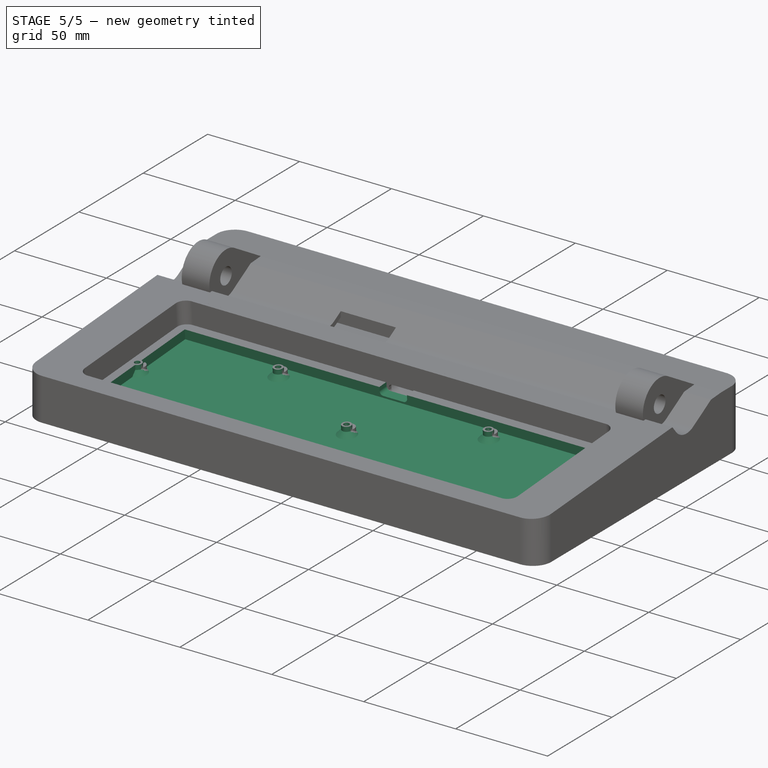
[diagram: stage 5 of 5 — iso view after this stage's code; geometry added in this stage tinted green]
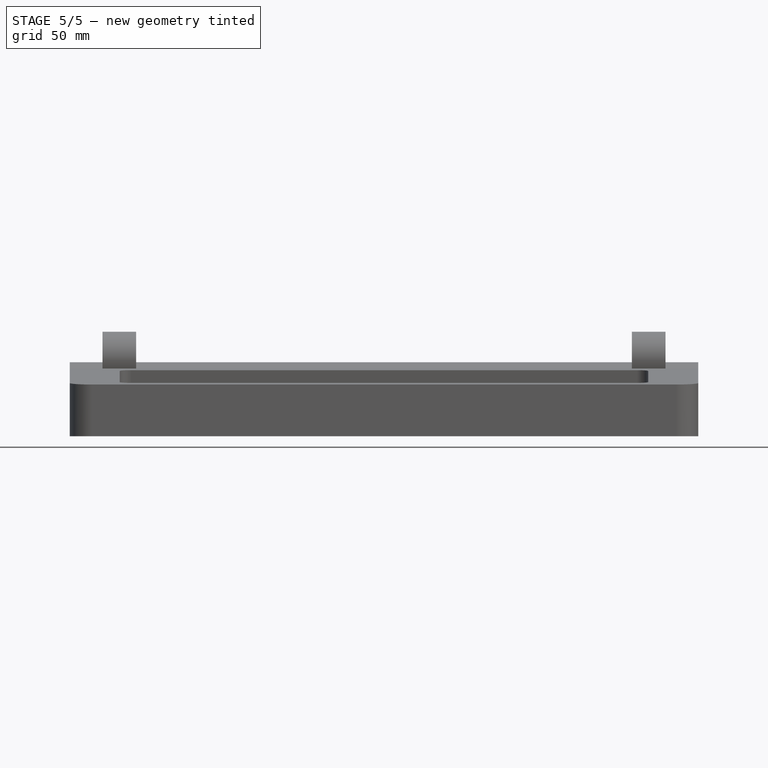
[diagram: stage 5 of 5 — front view after this stage's code; geometry added in this stage tinted green]
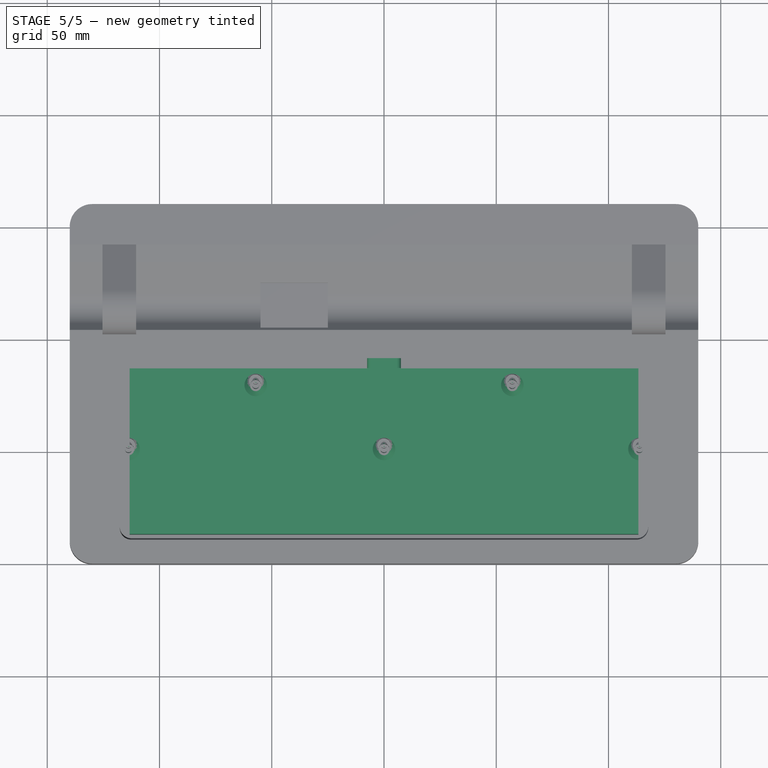
[diagram: stage 5 of 5 — top view after this stage's code; geometry added in this stage tinted green]
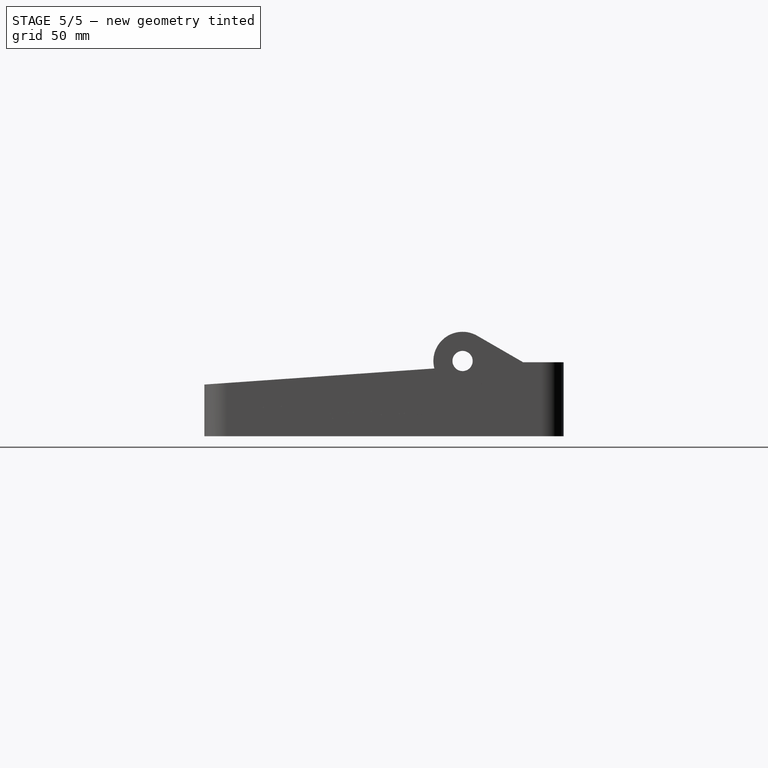
[diagram: stage 5 of 5 — right view after this stage's code; geometry added in this stage tinted green]
FEATURE [PartDesign::SubShapeBinder] Binder020
  BindCopyOnChange = 0
  BindMode = 0
  ClaimChildren = false
  Context = -> Body [Binder020.]
  Fuse = false
  MakeFace = true
  Offset = -1
  OffsetFill = false
  OffsetIntersection = false
  OffsetJoinType = 0
  OffsetOpenResult = false
  PartialLoad = false
  Placement = pos=(0,0,-12) rot=(0,0,1;0rad)
  Refine = true
  Relative = true
  Support = -> [Binder011[Edge16,Edge15,Edge18,Edge17]]
  _Version = 2
FEATURE [PartDesign::Pocket] Pocket005
  BaseFeature = -> Pocket
  Direction = (0,0.0697565,-0.997564)
  Length = 5
  Length2 = 5
  Profile = -> Binder020
  Refine = true
  Suppressed = false
  Type = 0
FEATURE [Sketcher::SketchObject] Sketch014  label="Sketch015"
  ArcFitTolerance = 1e-06
  AttachmentSupport = -> [Pocket005]
  ExternalGeometry = -> [Binder011]
  FullyConstrained = true
  MakeInternals = false
  MapMode = 5
  Placement = pos=(0,-0.903776,12.9246) rot=(1,0,0;0.069813rad)
  sketch-geometry (5):
    g0: Circle CenterX=-113.798 CenterY=-47.9567 CenterZ=0 NormalX=0 NormalY=0 NormalZ=1 AngleXU=0 Radius=2.5
    g1: Circle CenterX=-57.1492 CenterY=-19.3809 CenterZ=0 NormalX=0 NormalY=0 NormalZ=1 AngleXU=0 Radius=2.5
    g2: Circle CenterX=-3.64e-14 CenterY=-47.9559 CenterZ=0 NormalX=0 NormalY=0 NormalZ=1 AngleXU=0 Radius=2.5
    g3: Circle CenterX=57.151 CenterY=-19.3809 CenterZ=0 NormalX=0 NormalY=0 NormalZ=1 AngleXU=0 Radius=2.5
    g4: Circle CenterX=113.801 CenterY=-47.9567 CenterZ=0 NormalX=0 NormalY=0 NormalZ=1 AngleXU=0 Radius=2.5
  constraints (10):
    c: Coincident(g0,g-4)
    c: Coincident(g1,g-3)
    c: Coincident(g2,g-5)
    c: Coincident(g3,g-6)
    c: Coincident(g4,g-7)
    c: Equal(g4,g3)
    c: Equal(g3,g2)
    c: Equal(g2,g1)
    c: Equal(g1,g0)
    c: Diameter(g2) = 5
FEATURE [PartDesign::Pad] Pad003
  BaseFeature = -> Pocket005
  Direction = (0,-0.0697565,0.997564)
  Length = 5
  Length2 = 10
  Profile = -> Sketch014
  ReferenceAxis = -> Sketch014 [N_Axis]
  Refine = true
  Suppressed = false
  Type = 0
FEATURE [PartDesign::Chamfer] Chamfer
  Angle = 45
  Base = -> Pad003 [Edge215,Edge233,Edge232,Edge231,Edge225]
  BaseFeature = -> Pad003
  ChamferType = 0
  FlipDirection = false
  Refine = true
  Size = 2.5
  Size2 = 1
  SupportTransform = false
  Suppressed = false
  UseAllEdges = false
FEATURE [PartDesign::Hole] Hole
  BaseFeature = -> Chamfer
  CustomThreadClearance = 0
  Depth = 4
  DepthType = 0
  Diameter = 3
  DrillForDepth = false
  DrillPoint = 1
  DrillPointAngle = 118
  HoleCutCountersinkAngle = 90
  HoleCutCustomValues = false
  HoleCutDepth = 0
  HoleCutDiameter = 6.1
  HoleCutType = 0
  ModelThread = false
  Profile = -> Chamfer [Edge10,Edge87,Edge89,Edge91,Edge64]
  Refine = true
  Suppressed = false
  Tapered = false
  TaperedAngle = 90
  ThreadClass = 0
  ThreadDepth = 4
  ThreadDepthType = 0
  ThreadDirection = 0
  ThreadFit = 0
  ThreadSize = 0
  ThreadType = 0
  Threaded = false
  UseCustomThreadClearance = false
  expr: Diameter = <<Vars>>.nut_inserts_m2
FEATURE [Sketcher::SketchObject] Sketch015  label="Sketch016"
  ArcFitTolerance = 1e-06
  AttachmentSupport = -> [Hole]
  ExternalGeometry = -> [Hole]
  FullyConstrained = true
  MakeInternals = false
  MapMode = 5
  Placement = pos=(0,-6.49004,-0.453828) rot=(1,0,0;1.64061rad)
  sketch-geometry (8):
    g0: LineSegment StartX=-7.5 StartY=17.9269 StartZ=0 EndX=-7.5 EndY=15.9269 EndZ=0
    g1: LineSegment StartX=-5.5 StartY=13.9269 StartZ=0 EndX=5.5 EndY=13.9269 EndZ=0
    g2: LineSegment StartX=7.5 StartY=15.9269 StartZ=0 EndX=7.5 EndY=17.9269 EndZ=0
    g3: LineSegment StartX=7.5 StartY=17.9269 StartZ=0 EndX=-7.5 EndY=17.9269 EndZ=0
    g4: ArcOfCircle CenterX=-5.5 CenterY=15.9269 CenterZ=0 NormalX=0 NormalY=0 NormalZ=1 AngleXU=0 Radius=2 StartAngle=3.14159 EndAngle=4.71239
    g5: GeomPoint [constr] X=-7.5 Y=13.9269 Z=0
    g6: ArcOfCircle CenterX=5.5 CenterY=15.9269 CenterZ=0 NormalX=0 NormalY=0 NormalZ=1 AngleXU=0 Radius=2 StartAngle=4.71239 EndAngle=6.28319
    g7: GeomPoint [constr] X=7.5 Y=13.9269 Z=0
  constraints (19):
    c: Coincident(g2,g3)
    c: Coincident(g3,g0)
    c: Vertical(g0)
    c: Vertical(g2)
    c: Horizontal(g1)
    c: Symmetric(g0,g2,g-2)
    c: DistanceX(g3,g3) = 15
    c: DistanceY(g7,g2) = 4
    c: PointOnObject(g0,g-3)
    c: PointOnObject(g5,g0)
    c: PointOnObject(g5,g1)
    c: Tangent(g0,g4) = -1.5708
    c: Tangent(g1,g4) = -1.5708
    c: PointOnObject(g7,g1)
    c: PointOnObject(g7,g2)
    c: Tangent(g1,g6) = -1.5708
    c: Tangent(g2,g6) = -1.5708
    c: Equal(g6,g4)
    c: Radius(g6) = 2
FEATURE [PartDesign::Pocket] Pocket006
  BaseFeature = -> Hole
  Direction = (0,0.997564,0.0697565)
  Length = 20
  Length2 = 5
  Midplane = true
  Profile = -> Sketch015
  ReferenceAxis = -> Sketch015 [N_Axis]
  Refine = true
  Suppressed = false
  Type = 0
FEATURE [PartDesign::SubShapeBinder] Binder021
  BindCopyOnChange = 0
  BindMode = 0
  ClaimChildren = false
  Context = -> Body [Binder021.]
  Fuse = false
  MakeFace = true
  Offset = 1.5
  OffsetFill = false
  OffsetIntersection = false
  OffsetJoinType = 2
  OffsetOpenResult = false
  PartialLoad = false
  Refine = true
  Relative = true
  Support = -> [Pocket006[Edge110,Edge69,Edge93,Edge91,Edge89,Edge80]]
  _Version = 2
FEATURE [PartDesign::Pocket] Pocket007
  BaseFeature = -> Pocket006
  Direction = (0,-0.997564,-0.0697565)
  Length = 2
  Length2 = 5
  Profile = -> Binder021
  Refine = true
  Suppressed = false
  Type = 0
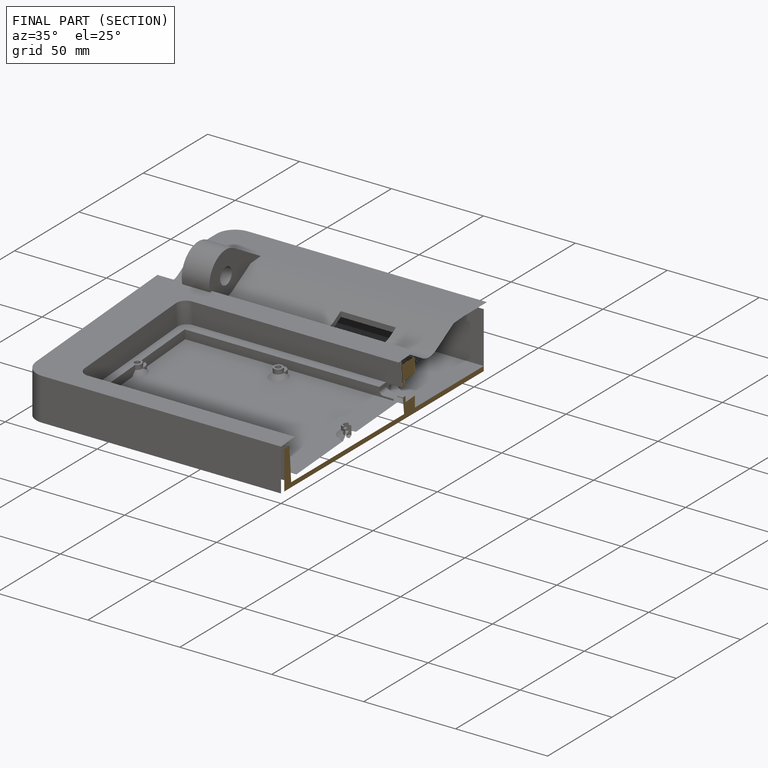
[diagram: finished part — half-section view (interior)]
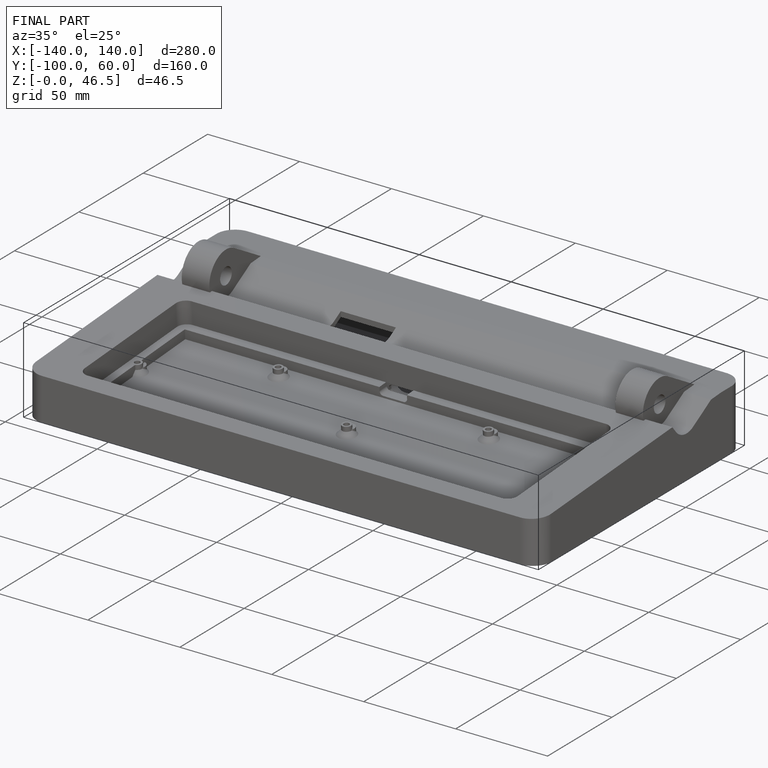
[diagram: finished part — iso view with bounding-box wireframe]
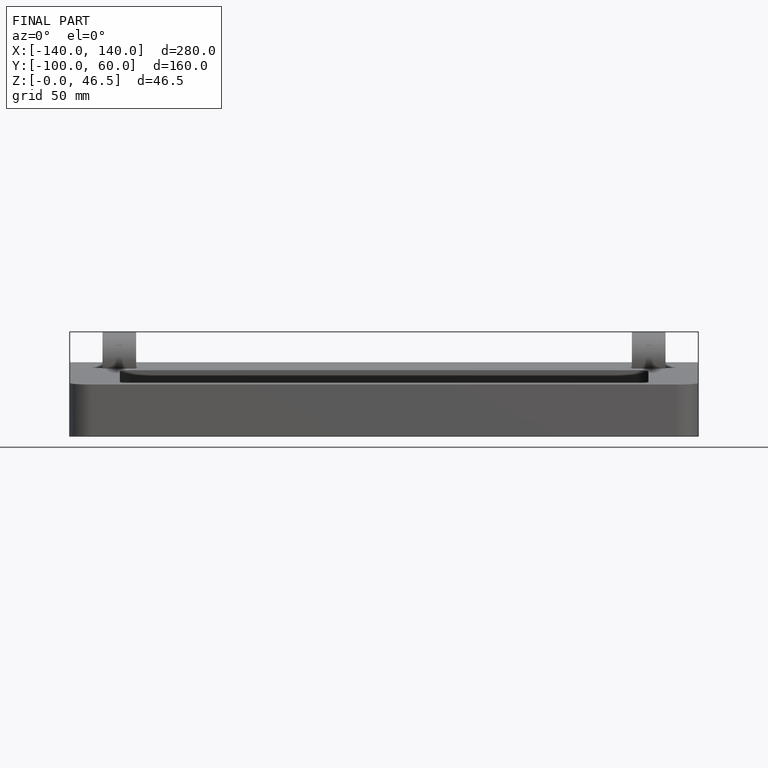
[diagram: finished part — front view with bounding-box wireframe]
